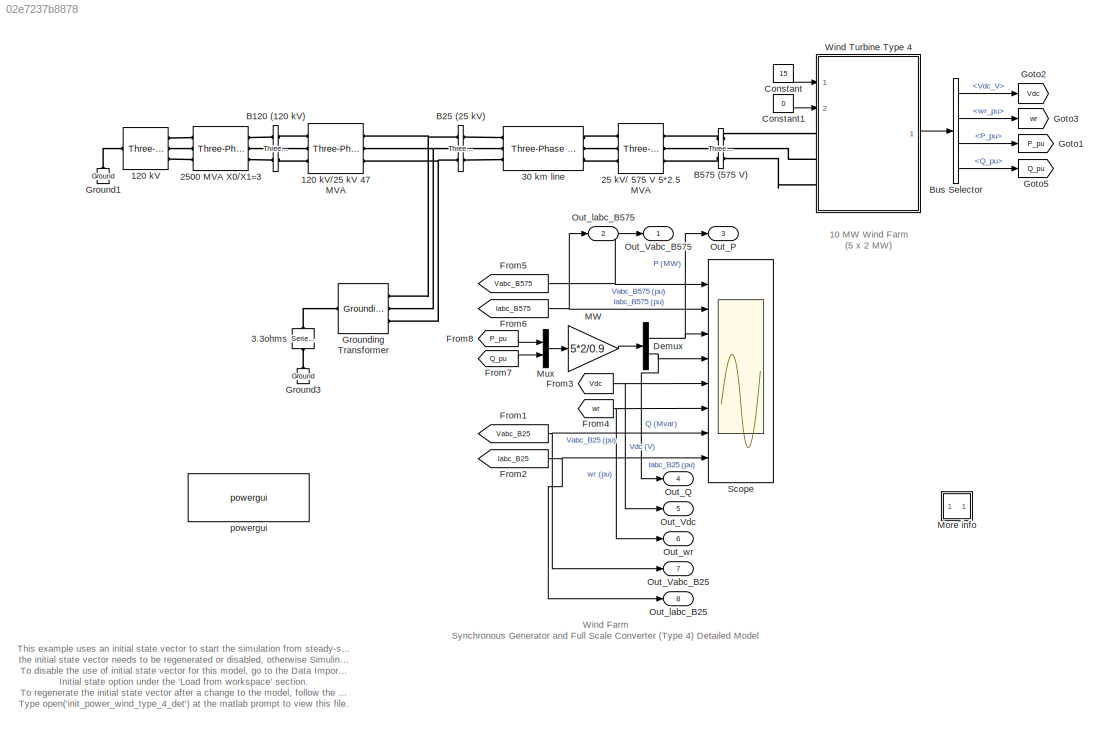
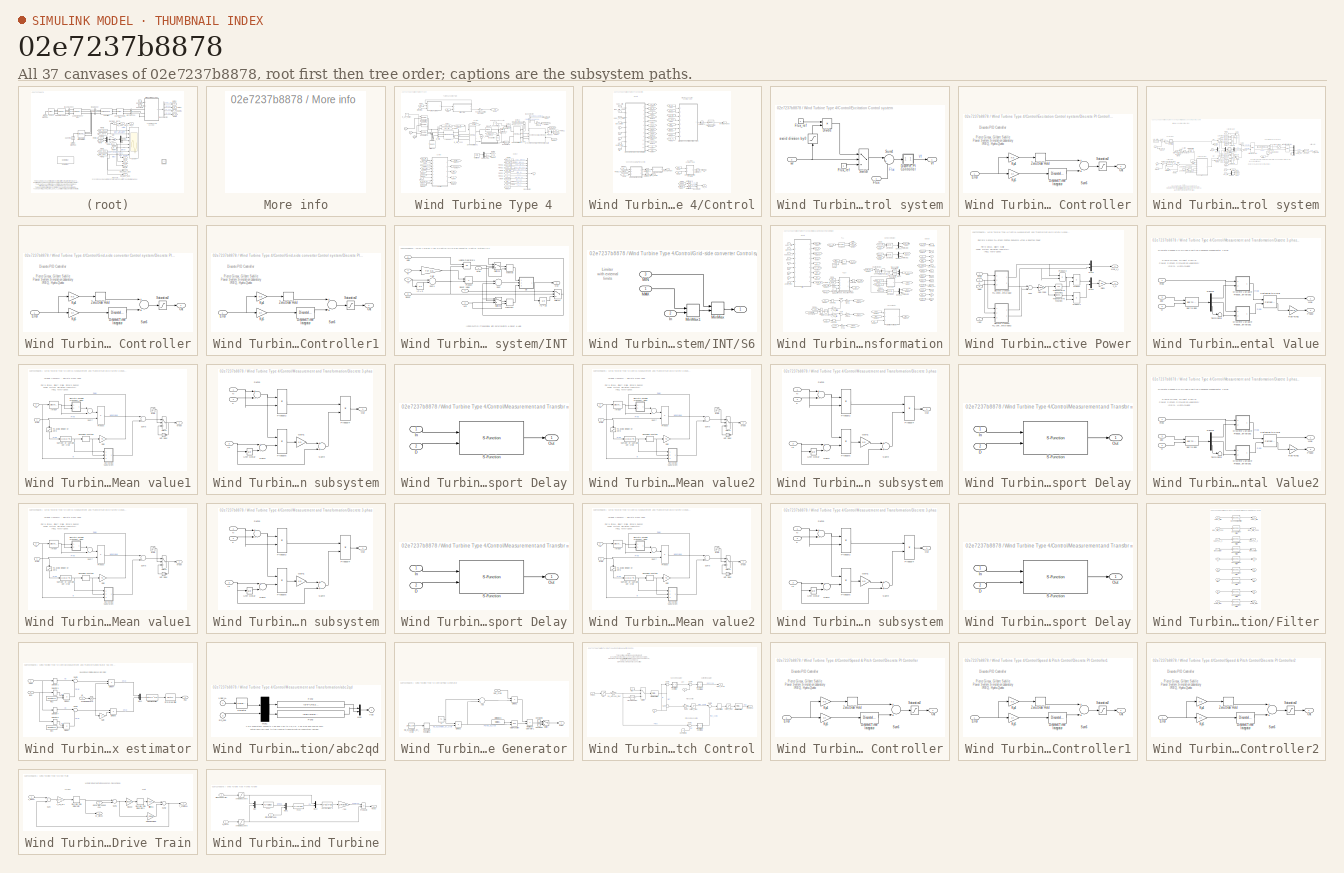
[diagram: thumbnail index - all 37 canvases of the model, root first then tree order]
MODEL slx_02e7237b8878
KIND model
CONFIG InitFcn = xInitial = init_power_wind_type_4_det;\nTs=2e-6;
CONFIG PreLoadFcn = Ts=2e-6;
BLOCK [Reference] 120 kV  REF=powerlib/Electrical
Sources/Three-Phase
Programmable
Voltage Source
  Amplitudes = [1 0.75 1.0]
  BusType = swing
  HarmonicA = [1 -0.1 0 2]
  HarmonicB = [2 0.15 35 2]*0
  HarmonicGeneration = off
  Ports = [0, 0, 0, 0, 0, 1, 3]
  PositiveSequence = [120e3 0 60]
  Pref = 0
  Qmax = inf
  Qmin = -inf
  Qref = 0
  SourceBlock = powerlib/Electrical\nSources/Three-Phase\nProgrammable\nVoltage Source
  SourceType = Three-Phase Programmable Voltage Source
  TimeValues = [0 0.03 0.13]
  Timing = [0.1  2]
  VariationEntity = Amplitude
  VariationFrequency = 2
  VariationMagnitude = 0.3
  VariationPhaseA = off
  VariationRate = 10
  VariationStep = -0.2
  VariationTiming = [0.05 0.05+5/60]
  VariationType = Table of time-amplitude pairs
  VariationTypeAlt = Step
BLOCK [Reference] 120 kV//25 kV 47 MVA  REF=powerlib/Elements/Three-Phase
Transformer
(Two Windings)
  AttributesFormatString = \n
  BreakLoop = off
  DataFile = 'basic_model'
  DataType = off
  Hysteresis = off
  InitialFluxes = [ 0.8 , -0.8 , 0.7 ]
  Lm = 500
  Measurements = None
  MoreParameters = off
  NominalPower = [47e6 60 ]
  Ports = [0, 0, 0, 0, 0, 3, 3]
  Rm = 500
  Saturation = [ 0,0  ;  0.005,1.2  ;  1.0,1.4 ]
  SetInitialFlux = off
  SetSaturation = off
  SourceBlock = powerlib/Elements/Three-Phase\nTransformer\n(Two Windings)
  SourceType = Three-Phase Transformer (Two Windings)
  TransfoNumber = 0
  UNITS = pu
  Winding1 = [ 120e3  0.08/30   0.08 ]
  Winding1Connection = Yg
  Winding2 = [ 25e3  0.08/30  0.08]
  Winding2Connection = Delta (D1)
BLOCK [Reference] 25 kV// 575 V 5*2.5 MVA  REF=powerlib/Elements/Three-Phase
Transformer
(Two Windings)
  AttributesFormatString = \n
  BreakLoop = off
  DataFile = 'hysteresis'
  DataType = off
  Hysteresis = off
  InitialFluxes = [ 0.8 , -0.8 , 0.7 ]
  Lm = inf
  Measurements = None
  MoreParameters = off
  NominalPower = [2.5e6*5  60]
  Ports = [0, 0, 0, 0, 0, 3, 3]
  Rm = 500
  Saturation = [ 0,0 ; 0.0024,1.2 ; 1.0,1.52 ]
  SetInitialFlux = off
  SetSaturation = off
  SourceBlock = powerlib/Elements/Three-Phase\nTransformer\n(Two Windings)
  SourceType = Three-Phase Transformer (Two Windings)
  TransfoNumber = 0
  UNITS = pu
  Winding1 = [25e3 , 0.025/30 , 0.025]
  Winding1Connection = Delta (D11)
  Winding2 = [ 575, 0.025/30 , 0.025]
  Winding2Connection = Yg
BLOCK [Reference] 2500 MVA X0//X1=3  REF=powerlib/Elements/Three-Phase
Mutual Inductance
Z1-Z0
  AttributesFormatString = \n
  LConnTagsString = a|b|c
  Ports = [0, 0, 0, 0, 0, 3, 3]
  PositiveSequence = [0.1  1.0/(2*pi*60)] *120e3^2/2500e6
  RConnTagsString = A|B|C
  SourceBlock = powerlib/Elements/Three-Phase\nMutual Inductance\nZ1-Z0
  SourceType = Three-Phase Mutual Inductance Z1-Z0
  ZeroSequence = [0.3  3.0/(2*pi*60)] *120e3^2/2500e6
BLOCK [Reference] 3.3ohms   REF=powerlib/Elements/Series RLC Branch
  BranchType = R
  Capacitance = []
  Inductance = []
  InitialCurrent = 0
  InitialVoltage = 0
  LConnTagsString = __new0
  Measurements = None
  Ports = [0, 0, 0, 0, 0, 1, 1]
  RConnTagsString = __new0
  Resistance = 3.3
  SetiL0 = off
  Setx0 = off
  SourceBlock = powerlib/Elements/Series RLC Branch
  SourceType = Series RLC Branch
BLOCK [Reference] 30 km line  REF=powerlib/Elements/Three-Phase
PI Section Line
  AttributesFormatString = \n
  Capacitances = [11.33e-009 5.01e-009]
  Frequency = 60
  Inductances = [1.05e-3 3.32e-3]
  LConnTagsString = a|b|c
  Length = 30
  Ports = [0, 0, 0, 0, 0, 3, 3]
  RConnTagsString = A|B|C
  Resistances = [0.1153 0.413]
  SourceBlock = powerlib/Elements/Three-Phase\nPI Section Line
  SourceType = Three-Phase PI Section Line
BLOCK [Reference] B120 (120 kV)  REF=powerlib/Measurements/Three-Phase
V-I Measurement
  CurrentMeasurement = no
  Ipu = off
  LabelI = Iabc_B120
  LabelV = Vabc_B120
  OutputType = Complex
  PSBequivalent = 0
  Pbase = 100e6
  PhasorSimulation = off
  Ports = [0, 0, 0, 0, 0, 3, 3]
  SetLabelI = on
  SetLabelV = off
  SourceBlock = powerlib/Measurements/Three-Phase\nV-I Measurement
  SourceType = Three-Phase VI Measurement
  Vbase = 120e3
  VoltageMeasurement = no
  Vpu = off
  VpuLL = off
BLOCK [Reference] B25 (25 kV)  REF=powerlib/Measurements/Three-Phase
V-I Measurement
  CurrentMeasurement = yes
  Ipu = on
  LabelI = Iabc_B25
  LabelV = Vabc_B25
  OutputType = Complex
  PSBequivalent = 0
  Pbase = 10e6
  PhasorSimulation = off
  Ports = [0, 0, 0, 0, 0, 3, 3]
  SetLabelI = on
  SetLabelV = on
  SourceBlock = powerlib/Measurements/Three-Phase\nV-I Measurement
  SourceType = Three-Phase VI Measurement
  Vbase = 25e3
  VoltageMeasurement = phase-to-ground
  Vpu = on
  VpuLL = off
BLOCK [Reference] B575 (575 V)  REF=powerlib/Measurements/Three-Phase
V-I Measurement
  CurrentMeasurement = yes
  Ipu = on
  LabelI = Iabc_B575
  LabelV = Vabc_B575
  OutputType = Complex
  PSBequivalent = 0
  Pbase = 5*2e6/0.9
  PhasorSimulation = off
  Ports = [0, 0, 0, 0, 0, 3, 3]
  SetLabelI = on
  SetLabelV = on
  SourceBlock = powerlib/Measurements/Three-Phase\nV-I Measurement
  SourceType = Three-Phase VI Measurement
  Vbase = 575
  VoltageMeasurement = phase-to-ground
  Vpu = on
  VpuLL = off
BLOCK [BusSelector] Bus Selector
  OutputSignals = Vdc_V,wr_pu,PQ_pu.P_pu,PQ_pu.Q_pu
  Ports = [1, 4]
BLOCK [Constant] Constant
  Value = 15
BLOCK [Constant] Constant1
  Value = 0
BLOCK [Demux] Demux
  DisplayOption = bar
  Outputs = 2
  Ports = [1, 2]
BLOCK [From] From1
  CloseFcn = tagdialog Close
  GotoTag = Vabc_B25
  TagVisibility = global
BLOCK [From] From2
  CloseFcn = tagdialog Close
  GotoTag = Iabc_B25
  TagVisibility = global
BLOCK [From] From3
  CloseFcn = tagdialog Close
  GotoTag = Vdc
BLOCK [From] From4
  CloseFcn = tagdialog Close
  GotoTag = wr
BLOCK [From] From5
  CloseFcn = tagdialog Close
  GotoTag = Vabc_B575
  TagVisibility = global
BLOCK [From] From6
  CloseFcn = tagdialog Close
  GotoTag = Iabc_B575
  TagVisibility = global
BLOCK [From] From7
  CloseFcn = tagdialog Close
  GotoTag = Q_pu
BLOCK [From] From8
  CloseFcn = tagdialog Close
  GotoTag = P_pu
BLOCK [Goto] Goto1
  GotoTag = P_pu
BLOCK [Goto] Goto2
  GotoTag = Vdc
BLOCK [Goto] Goto3
  GotoTag = wr
BLOCK [Goto] Goto5
  GotoTag = Q_pu
BLOCK [Reference] Ground1  REF=powerlib/Elements/Ground
  AttributesFormatString = \n
  LConnTagsString = a
  Ports = [0, 0, 0, 0, 0, 1]
  SourceBlock = powerlib/Elements/Ground
  SourceType = Ground
BLOCK [Reference] Ground3  REF=powerlib/Elements/Ground
  AttributesFormatString = \n
  LConnTagsString = a
  Ports = [0, 0, 0, 0, 0, 1]
  SourceBlock = powerlib/Elements/Ground
  SourceType = Ground
BLOCK [Reference] Grounding Transformer   REF=powerlib/Elements/Grounding
Transformer 
  MagnetizationBranch_SI = [1041.7 3.927e+005]
  MagnetizationBranch_pu = [500 500]
  Measurements = None
  NominalPower = [100e6   60]
  NominalVoltage = 25e3
  Ports = [0, 0, 0, 0, 0, 3, 1]
  SourceBlock = powerlib/Elements/Grounding\nTransformer
  SourceType = Grounding Transformer
  UNITS = pu
  ZeroSequenceImpedance_SI = [0.052083 589.05]
  ZeroSequenceImpedance_pu = [0.025 0.75]
BLOCK [Gain] MW
  Gain = 5*2/0.9
BLOCK [SubSystem] More info
  OpenFcn = showdemo(bdroot(gcb))
  Ports = []
  RequestExecContextInheritance = off
BLOCK [Mux] Mux
  DisplayOption = bar
  Inputs = 2
  Ports = [2, 1]
BLOCK [Outport] Out_P
  IconDisplay = Port number
  Port = 3
BLOCK [Outport] Out_Q
  IconDisplay = Port number
  Port = 4
BLOCK [Outport] Out_Vabc_B25
  IconDisplay = Port number
  Port = 7
BLOCK [Outport] Out_Vabc_B575
  IconDisplay = Port number
BLOCK [Outport] Out_Vdc
  IconDisplay = Port number
  Port = 5
BLOCK [Outport] Out_labc_B25
  IconDisplay = Port number
  Port = 8
BLOCK [Outport] Out_labc_B575
  IconDisplay = Port number
  Port = 2
BLOCK [Outport] Out_wr
  IconDisplay = Port number
  Port = 6
BLOCK [Scope] Scope
  Floating = off
  LimitDataPoints = off
  NumInputPorts = 8
  Ports = [8]
  ShowLegends = off
  YMax = 2~2~15~1~1500~1.232~2~2
  YMin = -2~-2~5~-1~1000~1.228~-2~-2
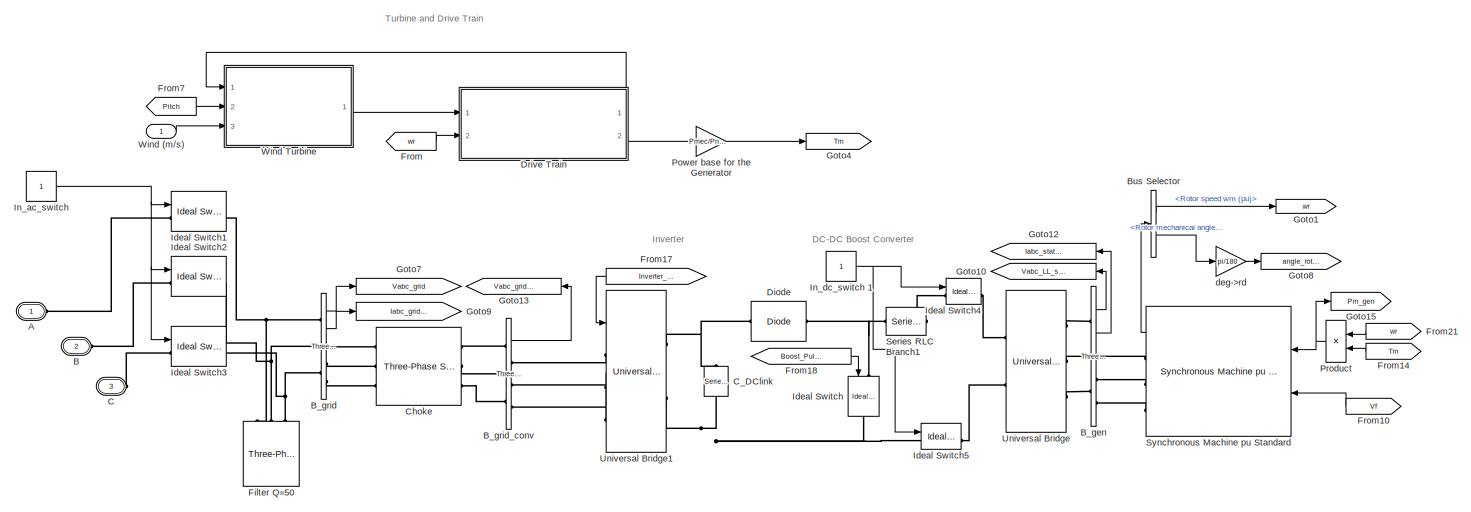
[diagram: Wind Turbine Type 4 - part 1/2, full width, top band]
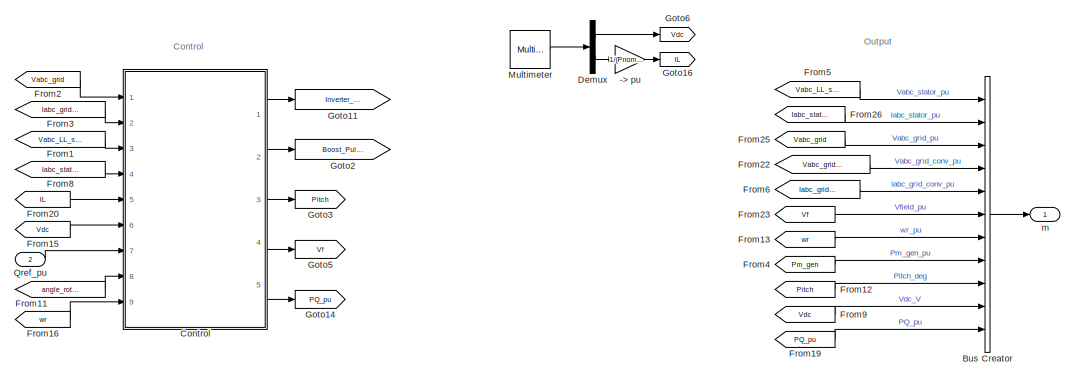
[diagram: Wind Turbine Type 4 - part 2/2, bottom center region]
BLOCK [SubSystem] Wind Turbine Type 4
  LoadFcn = %find_system(gcs,'FollowLinks', 'on', 'LookUnderMasks', 'all');
  Ports = [2, 1, 0, 0, 0, 3]
  RequestExecContextInheritance = off
BLOCK [Gain] Wind Turbine Type 4/-> pu
  Gain = 1/(Pnom/(3*sqrt(2)/pi*Vnom_gen))
BLOCK [PMIOPort] Wind Turbine Type 4/A
  Port = 1
  Side = Left
  Tag = PMCPort
BLOCK [PMIOPort] Wind Turbine Type 4/B
  Port = 2
  Side = Left
  Tag = PMCPort
BLOCK [Reference] Wind Turbine Type 4/B_gen  REF=powerlib/Measurements/Three-Phase
V-I Measurement
  CurrentMeasurement = yes
  Ipu = on
  LabelI = Iabc
  LabelV = Vabc
  OutputType = Complex
  PSBequivalent = 0
  Pbase = Pnom
  PhasorSimulation = off
  Ports = [0, 2, 0, 0, 0, 3, 3]
  SetLabelI = off
  SetLabelV = off
  SourceBlock = powerlib/Measurements/Three-Phase\nV-I Measurement
  SourceType = Three-Phase VI Measurement
  Vbase = Vnom_gen
  VoltageMeasurement = phase-to-phase
  Vpu = on
  VpuLL = off
BLOCK [Reference] Wind Turbine Type 4/B_grid  REF=powerlib/Measurements/Three-Phase
V-I Measurement
  CurrentMeasurement = yes
  Ipu = on
  LabelI = Iabc
  LabelV = Vabc
  OutputType = Complex
  PSBequivalent = 0
  Pbase = Pnom
  PhasorSimulation = off
  Ports = [0, 2, 0, 0, 0, 3, 3]
  SetLabelI = off
  SetLabelV = off
  SourceBlock = powerlib/Measurements/Three-Phase\nV-I Measurement
  SourceType = Three-Phase VI Measurement
  Vbase = Vnom
  VoltageMeasurement = phase-to-ground
  Vpu = on
  VpuLL = off
BLOCK [Reference] Wind Turbine Type 4/B_grid_conv  REF=powerlib/Measurements/Three-Phase
V-I Measurement
  CurrentMeasurement = no
  Ipu = on
  LabelI = Iabc
  LabelV = Vabc
  OutputType = Complex
  PSBequivalent = 0
  Pbase = Pnom
  PhasorSimulation = off
  Ports = [0, 1, 0, 0, 0, 3, 3]
  SetLabelI = off
  SetLabelV = off
  SourceBlock = powerlib/Measurements/Three-Phase\nV-I Measurement
  SourceType = Three-Phase VI Measurement
  Vbase = Vnom
  VoltageMeasurement = phase-to-ground
  Vpu = on
  VpuLL = off
BLOCK [BusCreator] Wind Turbine Type 4/Bus Creator
  DisplayOption = bar
  Inputs = 11
  Ports = [11, 1]
BLOCK [BusSelector] Wind Turbine Type 4/Bus Selector
  OutputSignals = Mechanical.Rotor speed  wm  (pu),Mechanical.Rotor mechanical angle  theta (deg)
  Ports = [1, 2]
BLOCK [PMIOPort] Wind Turbine Type 4/C
  Port = 3
  Side = Left
  Tag = PMCPort
BLOCK [Reference] Wind Turbine Type 4/C_DClink  REF=powerlib/Elements/Series RLC Branch
  BranchType = C
  Capacitance = C_DClink
  Inductance = 1e-3
  InitialCurrent = 0
  InitialVoltage = Vdc_nom
  LConnTagsString = __new0
  Measurements = Branch voltage
  Ports = [0, 0, 0, 0, 0, 1, 1]
  RConnTagsString = __new0
  Resistance = 1
  SetiL0 = off
  Setx0 = on
  SourceBlock = powerlib/Elements/Series RLC Branch
  SourceType = Series RLC Branch
BLOCK [Reference] Wind Turbine Type 4/Choke   REF=powerlib/Elements/Three-Phase
Series RLC Branch
  AttributesFormatString = \n
  BranchType = RL
  Capacitance = []
  Inductance = L_RL*Vnom^2/Pnom/(2*pi*Fnom)
  LConnTagsString = A|B|C
  Measurements = None
  Ports = [0, 0, 0, 0, 0, 3, 3]
  RConnTagsString = A|B|C
  Resistance = R_RL*Vnom^2/Pnom
  SourceBlock = powerlib/Elements/Three-Phase\nSeries RLC Branch
  SourceType = Three-Phase Series RLC Branch
BLOCK [SubSystem] Wind Turbine Type 4/Control
  Ports = [9, 5]
  RequestExecContextInheritance = off
BLOCK [Outport] Wind Turbine Type 4/Control/Boost_Pulse
  IconDisplay = Port number
  Port = 2
BLOCK [BusCreator] Wind Turbine Type 4/Control/Bus Creator
  DisplayOption = bar
  Inputs = 2
  Ports = [2, 1]
BLOCK [SubSystem] Wind Turbine Type 4/Control/Excitation Control system
  Ports = [2, 1]
  RequestExecContextInheritance = off
BLOCK [SubSystem] Wind Turbine Type 4/Control/Excitation Control system/Discrete PI Controller
  DialogController = POWERSYS.PowerSysDialog
  Ports = [1, 1]
  RequestExecContextInheritance = off
BLOCK [DiscreteIntegrator] Wind Turbine Type 4/Control/Excitation Control system/Discrete PI Controller/Discrete-Time Integrator
  InitialCondition = Init
  LimitOutput = on
  LowerSaturationLimit = LowerLimit
  Ports = [1, 1]
  SampleTime = Ts
  UpperSaturationLimit = UpperLimit
BLOCK [Inport] Wind Turbine Type 4/Control/Excitation Control system/Discrete PI Controller/Error
  IconDisplay = Port number
  SampleTime = Ts
BLOCK [Gain] Wind Turbine Type 4/Control/Excitation Control system/Discrete PI Controller/Kp4
  Gain = Kp
  SampleTime = Ts
BLOCK [Gain] Wind Turbine Type 4/Control/Excitation Control system/Discrete PI Controller/Kp5
  Gain = Ki
  SampleTime = Ts
BLOCK [Outport] Wind Turbine Type 4/Control/Excitation Control system/Discrete PI Controller/Out
  IconDisplay = Port number
  InitialOutput = 0
  SampleTime = Ts
BLOCK [Saturate] Wind Turbine Type 4/Control/Excitation Control system/Discrete PI Controller/Saturation2
  InputPortMap = u0
  LowerLimit = LowerLimit
  Ports = [1, 1]
  SampleTime = Ts
  UpperLimit = UpperLimit
BLOCK [Sum] Wind Turbine Type 4/Control/Excitation Control system/Discrete PI Controller/Sum6
  Ports = [2, 1]
  SampleTime = Ts
BLOCK [ZeroOrderHold] Wind Turbine Type 4/Control/Excitation Control system/Discrete PI Controller/Zero-Order Hold
  SampleTime = Ts
BLOCK [Product] Wind Turbine Type 4/Control/Excitation Control system/Divide
  InputSameDT = off
  Inputs = */
  OutDataTypeStr = Inherit: Inherit via internal rule
  Ports = [2, 1]
  RndMeth = Floor
  SaturateOnIntegerOverflow = off
BLOCK [Inport] Wind Turbine Type 4/Control/Excitation Control system/Flux
  IconDisplay = Port number
BLOCK [Constant] Wind Turbine Type 4/Control/Excitation Control system/Flux_ref
BLOCK [Constant] Wind Turbine Type 4/Control/Excitation Control system/Flux_ref 
BLOCK [Sum] Wind Turbine Type 4/Control/Excitation Control system/Sum4
  IconShape = round
  Inputs = |+-
  Ports = [2, 1]
BLOCK [Switch] Wind Turbine Type 4/Control/Excitation Control system/Switch
  InputSameDT = off
  SaturateOnIntegerOverflow = off
  Threshold = 1
BLOCK [Outport] Wind Turbine Type 4/Control/Excitation Control system/Vf
  IconDisplay = Port number
BLOCK [Saturate] Wind Turbine Type 4/Control/Excitation Control system/avoid division by 0
  InputPortMap = u0
  LowerLimit = 1e-6
  Ports = [1, 1]
  UpperLimit = inf
BLOCK [Inport] Wind Turbine Type 4/Control/Excitation Control system/wr
  IconDisplay = Port number
  Port = 2
BLOCK [From] Wind Turbine Type 4/Control/From1
  CloseFcn = tagdialog Close
  GotoTag = Idq_gc
BLOCK [From] Wind Turbine Type 4/Control/From12
  CloseFcn = tagdialog Close
  GotoTag = wr
BLOCK [From] Wind Turbine Type 4/Control/From13
  CloseFcn = tagdialog Close
  GotoTag = Qmeas
BLOCK [From] Wind Turbine Type 4/Control/From18
  CloseFcn = tagdialog Close
  GotoTag = Vdq_grid
BLOCK [From] Wind Turbine Type 4/Control/From2
  CloseFcn = tagdialog Close
  GotoTag = Vdc_meas
BLOCK [From] Wind Turbine Type 4/Control/From22
  CloseFcn = tagdialog Close
  GotoTag = w_pu
BLOCK [From] Wind Turbine Type 4/Control/From23
  CloseFcn = tagdialog Close
  GotoTag = Pmeas
BLOCK [From] Wind Turbine Type 4/Control/From24
  CloseFcn = tagdialog Close
  GotoTag = Vmeas
BLOCK [From] Wind Turbine Type 4/Control/From3
  CloseFcn = tagdialog Close
  GotoTag = Theta_PLL
BLOCK [From] Wind Turbine Type 4/Control/From4
  CloseFcn = tagdialog Close
  GotoTag = Pmeas
BLOCK [From] Wind Turbine Type 4/Control/From5
  CloseFcn = tagdialog Close
  GotoTag = Flux
BLOCK [From] Wind Turbine Type 4/Control/From6
  CloseFcn = tagdialog Close
  GotoTag = wr
BLOCK [From] Wind Turbine Type 4/Control/From7
  CloseFcn = tagdialog Close
  GotoTag = Qmeas
BLOCK [From] Wind Turbine Type 4/Control/From8
  CloseFcn = tagdialog Close
  GotoTag = Qref
BLOCK [From] Wind Turbine Type 4/Control/From9
  CloseFcn = tagdialog Close
  GotoTag = IL
BLOCK [Goto] Wind Turbine Type 4/Control/Goto1
  GotoTag = Theta_PLL
BLOCK [Goto] Wind Turbine Type 4/Control/Goto10
  GotoTag = Idq_gc
BLOCK [Goto] Wind Turbine Type 4/Control/Goto12
  GotoTag = Flux
BLOCK [Goto] Wind Turbine Type 4/Control/Goto13
  GotoTag = w_pu
BLOCK [Goto] Wind Turbine Type 4/Control/Goto14
  GotoTag = Vmeas
BLOCK [Goto] Wind Turbine Type 4/Control/Goto15
  GotoTag = Pmeas
BLOCK [Goto] Wind Turbine Type 4/Control/Goto17
  GotoTag = Qmeas
BLOCK [Goto] Wind Turbine Type 4/Control/Goto2
  GotoTag = Vdc_meas
BLOCK [Goto] Wind Turbine Type 4/Control/Goto3
  GotoTag = IL
BLOCK [Goto] Wind Turbine Type 4/Control/Goto4
  GotoTag = wr
BLOCK [Goto] Wind Turbine Type 4/Control/Goto6
  GotoTag = Qref
BLOCK [Goto] Wind Turbine Type 4/Control/Goto9
  GotoTag = Vdq_grid
BLOCK [SubSystem] Wind Turbine Type 4/Control/Grid-side converter Control system
  Ports = [8, 1]
  RequestExecContextInheritance = off
BLOCK [Gain] Wind Turbine Type 4/Control/Grid-side converter Control system/->pu
  Gain = 1/Vdc_nom
  OutDataTypeStr = Inherit: Inherit via internal rule
  ParamDataTypeStr = Inherit: Inherit via internal rule
  SaturateOnIntegerOverflow = off
BLOCK [Saturate] Wind Turbine Type 4/Control/Grid-side converter Control system/0-Mod_index_max
  InputPortMap = u0
  LowerLimit = 0
  Ports = [1, 1]
  UpperLimit = Mod_index_max
BLOCK [Saturate] Wind Turbine Type 4/Control/Grid-side converter Control system/Avoid division by zero
  InputPortMap = u0
  LowerLimit = 1e-6
  Ports = [1, 1]
  UpperLimit = 1e6
BLOCK [Reference] Wind Turbine Type 4/Control/Grid-side converter Control system/Cartesian to Polar  REF=simulink_extras/Transformations/Cartesian to
Polar
  Ports = [2, 2]
  SourceBlock = simulink_extras/Transformations/Cartesian to\nPolar
  SourceType = Cart2Polar
BLOCK [Constant] Wind Turbine Type 4/Control/Grid-side converter Control system/Constant1
  Value = L_RL
BLOCK [Constant] Wind Turbine Type 4/Control/Grid-side converter Control system/Constant2
  Value = 0
BLOCK [Constant] Wind Turbine Type 4/Control/Grid-side converter Control system/Constant3
  Value = Ki_volt_reg
BLOCK [Constant] Wind Turbine Type 4/Control/Grid-side converter Control system/Constant4
  Value = L_RL
BLOCK [Constant] Wind Turbine Type 4/Control/Grid-side converter Control system/Constant5
  Value = R_RL
BLOCK [Constant] Wind Turbine Type 4/Control/Grid-side converter Control system/Constant6
  Value = R_RL
BLOCK [DataTypeConversion] Wind Turbine Type 4/Control/Grid-side converter Control system/Data Type Conversion2
  OutDataTypeStr = boolean
  RndMeth = Floor
  SaturateOnIntegerOverflow = off
BLOCK [Demux] Wind Turbine Type 4/Control/Grid-side converter Control system/Demux
  Outputs = 2
  Ports = [1, 2]
BLOCK [Demux] Wind Turbine Type 4/Control/Grid-side converter Control system/Demux3
  Outputs = 2
  Ports = [1, 2]
BLOCK [Demux] Wind Turbine Type 4/Control/Grid-side converter Control system/Demux4
  Outputs = 2
  Ports = [1, 2]
BLOCK [SubSystem] Wind Turbine Type 4/Control/Grid-side converter Control system/Discrete PI Controller
  DialogController = POWERSYS.PowerSysDialog
  Ports = [1, 1]
  RequestExecContextInheritance = off
BLOCK [DiscreteIntegrator] Wind Turbine Type 4/Control/Grid-side converter Control system/Discrete PI Controller/Discrete-Time Integrator
  InitialCondition = Init
  LimitOutput = on
  LowerSaturationLimit = LowerLimit
  Ports = [1, 1]
  SampleTime = Ts
  UpperSaturationLimit = UpperLimit
BLOCK [Inport] Wind Turbine Type 4/Control/Grid-side converter Control system/Discrete PI Controller/Error
  IconDisplay = Port number
  SampleTime = Ts
BLOCK [Gain] Wind Turbine Type 4/Control/Grid-side converter Control system/Discrete PI Controller/Kp4
  Gain = Kp
  SampleTime = Ts
BLOCK [Gain] Wind Turbine Type 4/Control/Grid-side converter Control system/Discrete PI Controller/Kp5
  Gain = Ki
  SampleTime = Ts
BLOCK [Outport] Wind Turbine Type 4/Control/Grid-side converter Control system/Discrete PI Controller/Out
  IconDisplay = Port number
  InitialOutput = 0
  SampleTime = Ts
BLOCK [Saturate] Wind Turbine Type 4/Control/Grid-side converter Control system/Discrete PI Controller/Saturation2
  InputPortMap = u0
  LowerLimit = LowerLimit
  Ports = [1, 1]
  SampleTime = Ts
  UpperLimit = UpperLimit
BLOCK [Sum] Wind Turbine Type 4/Control/Grid-side converter Control system/Discrete PI Controller/Sum6
  Ports = [2, 1]
  SampleTime = Ts
BLOCK [ZeroOrderHold] Wind Turbine Type 4/Control/Grid-side converter Control system/Discrete PI Controller/Zero-Order Hold
  SampleTime = Ts
BLOCK [SubSystem] Wind Turbine Type 4/Control/Grid-side converter Control system/Discrete PI Controller1
  DialogController = POWERSYS.PowerSysDialog
  Ports = [1, 1]
  RequestExecContextInheritance = off
BLOCK [DiscreteIntegrator] Wind Turbine Type 4/Control/Grid-side converter Control system/Discrete PI Controller1/Discrete-Time Integrator
  InitialCondition = Init
  LimitOutput = on
  LowerSaturationLimit = LowerLimit
  Ports = [1, 1]
  SampleTime = Ts
  UpperSaturationLimit = UpperLimit
BLOCK [Inport] Wind Turbine Type 4/Control/Grid-side converter Control system/Discrete PI Controller1/Error
  IconDisplay = Port number
  SampleTime = Ts
BLOCK [Gain] Wind Turbine Type 4/Control/Grid-side converter Control system/Discrete PI Controller1/Kp4
  Gain = Kp
  SampleTime = Ts
BLOCK [Gain] Wind Turbine Type 4/Control/Grid-side converter Control system/Discrete PI Controller1/Kp5
  Gain = Ki
  SampleTime = Ts
BLOCK [Outport] Wind Turbine Type 4/Control/Grid-side converter Control system/Discrete PI Controller1/Out
  IconDisplay = Port number
  InitialOutput = 0
  SampleTime = Ts
BLOCK [Saturate] Wind Turbine Type 4/Control/Grid-side converter Control system/Discrete PI Controller1/Saturation2
  InputPortMap = u0
  LowerLimit = LowerLimit
  Ports = [1, 1]
  SampleTime = Ts
  UpperLimit = UpperLimit
BLOCK [Sum] Wind Turbine Type 4/Control/Grid-side converter Control system/Discrete PI Controller1/Sum6
  Ports = [2, 1]
  SampleTime = Ts
BLOCK [ZeroOrderHold] Wind Turbine Type 4/Control/Grid-side converter Control system/Discrete PI Controller1/Zero-Order Hold
  SampleTime = Ts
BLOCK [DiscreteIntegrator] Wind Turbine Type 4/Control/Grid-side converter Control system/Discrete-Time Integrator1
  InitialCondition = 1
  InitialConditionSource = external
  LimitOutput = on
  LowerSaturationLimit = Var_reg_output_low_limit
  Ports = [2, 1]
  SampleTime = Ts
  UpperSaturationLimit = Var_reg_output_hi_limit
  gainval = Ki_var_reg
BLOCK [Reference] Wind Turbine Type 4/Control/Grid-side converter Control system/First-Order Filter  REF=powerlib_meascontrol/Filters/First-Order
Filter
  FilterType = Lowpass
  FreqRange = [0,  200,  1]
  Initialize = on
  PlotResponse = off
  Ports = [1, 1]
  SourceBlock = powerlib_meascontrol/Filters/First-Order\nFilter
  SourceType = First-Order Filter
  Tc = Iq_ref_limit_time_constant
  Ts = Ts
  Vac_Init = [0, 0, 0]
  Vdc_Init = Imax_grid_conv
BLOCK [From] Wind Turbine Type 4/Control/Grid-side converter Control system/From1
  CloseFcn = tagdialog Close
  GotoTag = w_pu
BLOCK [From] Wind Turbine Type 4/Control/Grid-side converter Control system/From10
  CloseFcn = tagdialog Close
  GotoTag = id_ref
BLOCK [From] Wind Turbine Type 4/Control/Grid-side converter Control system/From2
  CloseFcn = tagdialog Close
  GotoTag = iq_ref
BLOCK [From] Wind Turbine Type 4/Control/Grid-side converter Control system/From3
  CloseFcn = tagdialog Close
  GotoTag = iq_ref
BLOCK [From] Wind Turbine Type 4/Control/Grid-side converter Control system/From4
  CloseFcn = tagdialog Close
  GotoTag = w_pu
BLOCK [From] Wind Turbine Type 4/Control/Grid-side converter Control system/From5
  CloseFcn = tagdialog Close
  GotoTag = id_ref
BLOCK [From] Wind Turbine Type 4/Control/Grid-side converter Control system/From6
  CloseFcn = tagdialog Close
  GotoTag = Vd
BLOCK [From] Wind Turbine Type 4/Control/Grid-side converter Control system/From7
  CloseFcn = tagdialog Close
  GotoTag = Vq
BLOCK [From] Wind Turbine Type 4/Control/Grid-side converter Control system/From8
  CloseFcn = tagdialog Close
  GotoTag = Vdc
BLOCK [Gain] Wind Turbine Type 4/Control/Grid-side converter Control system/Gain
  Gain = -1
BLOCK [Goto] Wind Turbine Type 4/Control/Grid-side converter Control system/Goto1
  GotoTag = w_pu
BLOCK [Goto] Wind Turbine Type 4/Control/Grid-side converter Control system/Goto13
  GotoTag = Vdc
BLOCK [Goto] Wind Turbine Type 4/Control/Grid-side converter Control system/Goto2
  GotoTag = iq_ref
BLOCK [Goto] Wind Turbine Type 4/Control/Grid-side converter Control system/Goto3
  GotoTag = id_ref
BLOCK [Goto] Wind Turbine Type 4/Control/Grid-side converter Control system/Goto4
  GotoTag = Vd
BLOCK [Goto] Wind Turbine Type 4/Control/Grid-side converter Control system/Goto5
  GotoTag = Vq
BLOCK [SubSystem] Wind Turbine Type 4/Control/Grid-side converter Control system/INT
  Ports = [7, 1]
  RequestExecContextInheritance = off
BLOCK [Gain] Wind Turbine Type 4/Control/Grid-side converter Control system/INT/Gain
  Gain = Ts* 0.5
BLOCK [Inport] Wind Turbine Type 4/Control/Grid-side converter Control system/INT/Hold
  IconDisplay = Port number
  Port = 5
BLOCK [UnitDelay] Wind Turbine Type 4/Control/Grid-side converter Control system/INT/IC = 0
  SampleTime = Ts
BLOCK [UnitDelay] Wind Turbine Type 4/Control/Grid-side converter Control system/INT/IC = i_ic
  SampleTime = Ts
BLOCK [Inport] Wind Turbine Type 4/Control/Grid-side converter Control system/INT/In
  IconDisplay = Port number
  Port = 3
BLOCK [Inport] Wind Turbine Type 4/Control/Grid-side converter Control system/INT/Ki
  IconDisplay = Port number
  Port = 4
BLOCK [Logic] Wind Turbine Type 4/Control/Grid-side converter Control system/INT/Logical Operator4
  Operator = OR
  Ports = [2, 1]
BLOCK [Inport] Wind Turbine Type 4/Control/Grid-side converter Control system/INT/Max
  IconDisplay = Port number
BLOCK [Inport] Wind Turbine Type 4/Control/Grid-side converter Control system/INT/Min
  IconDisplay = Port number
  Port = 2
BLOCK [MinMax] Wind Turbine Type 4/Control/Grid-side converter Control system/INT/MinMax
  Inputs = 2
  Ports = [2, 1]
BLOCK [MinMax] Wind Turbine Type 4/Control/Grid-side converter Control system/INT/MinMax1
  Function = max
  Inputs = 2
  Ports = [2, 1]
BLOCK [Outport] Wind Turbine Type 4/Control/Grid-side converter Control system/INT/Out
  IconDisplay = Port number
  InitialOutput = 0
BLOCK [Product] Wind Turbine Type 4/Control/Grid-side converter Control system/INT/Product
  InputSameDT = off
  Ports = [2, 1]
  RndMeth = Floor
BLOCK [Inport] Wind Turbine Type 4/Control/Grid-side converter Control system/INT/Reset
  IconDisplay = Port number
  Port = 6
BLOCK [Inport] Wind Turbine Type 4/Control/Grid-side converter Control system/INT/Reset Value
  IconDisplay = Port number
  Port = 7
BLOCK [SubSystem] Wind Turbine Type 4/Control/Grid-side converter Control system/INT/S6
  Ports = [3, 1]
  RequestExecContextInheritance = off
BLOCK [Outport] Wind Turbine Type 4/Control/Grid-side converter Control system/INT/S6/  
  IconDisplay = Port number
  InitialOutput = 0
BLOCK [Inport] Wind Turbine Type 4/Control/Grid-side converter Control system/INT/S6/In
  IconDisplay = Port number
  Port = 2
BLOCK [Inport] Wind Turbine Type 4/Control/Grid-side converter Control system/INT/S6/MAX
  IconDisplay = Port number
BLOCK [Inport] Wind Turbine Type 4/Control/Grid-side converter Control system/INT/S6/MIN
  IconDisplay = Port number
  Port = 3
BLOCK [MinMax] Wind Turbine Type 4/Control/Grid-side converter Control system/INT/S6/MinMax
  Function = max
  Inputs = 2
  Ports = [2, 1]
BLOCK [MinMax] Wind Turbine Type 4/Control/Grid-side converter Control system/INT/S6/MinMax1
  Inputs = 2
  Ports = [2, 1]
BLOCK [Sum] Wind Turbine Type 4/Control/Grid-side converter Control system/INT/Sum
  Ports = [2, 1]
BLOCK [Sum] Wind Turbine Type 4/Control/Grid-side converter Control system/INT/Sum1
  Ports = [2, 1]
BLOCK [Switch] Wind Turbine Type 4/Control/Grid-side converter Control system/INT/Switch2
  Threshold = 0.5
BLOCK [Switch] Wind Turbine Type 4/Control/Grid-side converter Control system/INT/Switch3
  Threshold = 0.5
BLOCK [Switch] Wind Turbine Type 4/Control/Grid-side converter Control system/INT/Switch7
  Threshold = 0.5
BLOCK [Inport] Wind Turbine Type 4/Control/Grid-side converter Control system/Idq_gc
  IconDisplay = Port number
BLOCK [Constant] Wind Turbine Type 4/Control/Grid-side converter Control system/Imax^2
  Value = Imax_grid_conv^2
BLOCK [Constant] Wind Turbine Type 4/Control/Grid-side converter Control system/K
  Value = Vnom*2*sqrt(2/3)
BLOCK [Math] Wind Turbine Type 4/Control/Grid-side converter Control system/Math Function
  Operator = square
  Ports = [1, 1]
BLOCK [Math] Wind Turbine Type 4/Control/Grid-side converter Control system/Math Function1
  Operator = sqrt
  Ports = [1, 1]
BLOCK [Mux] Wind Turbine Type 4/Control/Grid-side converter Control system/Mux
  DisplayOption = bar
  Inputs = 3
  Ports = [3, 1]
BLOCK [Mux] Wind Turbine Type 4/Control/Grid-side converter Control system/Mux2
  DisplayOption = bar
  Inputs = 2
  Ports = [2, 1]
BLOCK [Reference] Wind Turbine Type 4/Control/Grid-side converter Control system/Polar to Cartesian  REF=simulink_extras/Transformations/Polar to
Cartesian
  Ports = [2, 2]
  SourceBlock = simulink_extras/Transformations/Polar to\nCartesian
  SourceType = Polar2Cart
BLOCK [Product] Wind Turbine Type 4/Control/Grid-side converter Control system/Product
  Inputs = 3
  Ports = [3, 1]
  RndMeth = Floor
BLOCK [Product] Wind Turbine Type 4/Control/Grid-side converter Control system/Product1
  Inputs = 3
  Ports = [3, 1]
  RndMeth = Floor
BLOCK [Product] Wind Turbine Type 4/Control/Grid-side converter Control system/Product2
  Ports = [2, 1]
  RndMeth = Floor
BLOCK [Product] Wind Turbine Type 4/Control/Grid-side converter Control system/Product3
  Ports = [2, 1]
  RndMeth = Floor
BLOCK [Product] Wind Turbine Type 4/Control/Grid-side converter Control system/Product4
  Inputs = **/
  Ports = [3, 1]
  RndMeth = Floor
BLOCK [Inport] Wind Turbine Type 4/Control/Grid-side converter Control system/Qmeas
  IconDisplay = Port number
  Port = 6
BLOCK [Inport] Wind Turbine Type 4/Control/Grid-side converter Control system/Qref
  IconDisplay = Port number
  Port = 5
BLOCK [Sum] Wind Turbine Type 4/Control/Grid-side converter Control system/Sum
  IconShape = round
  Inputs = |+-
  Ports = [2, 1]
BLOCK [Sum] Wind Turbine Type 4/Control/Grid-side converter Control system/Sum1
  IconShape = round
  Inputs = |-+
  Ports = [2, 1]
BLOCK [Sum] Wind Turbine Type 4/Control/Grid-side converter Control system/Sum2
  IconShape = round
  Inputs = |+-
  Ports = [2, 1]
BLOCK [Sum] Wind Turbine Type 4/Control/Grid-side converter Control system/Sum3
  IconShape = round
  Inputs = |+-
  Ports = [2, 1]
BLOCK [Sum] Wind Turbine Type 4/Control/Grid-side converter Control system/Sum4
  IconShape = round
  Inputs = -+|
  Ports = [2, 1]
BLOCK [Sum] Wind Turbine Type 4/Control/Grid-side converter Control system/Sum5
  IconShape = round
  Inputs = ||++-
  Ports = [3, 1]
BLOCK [Sum] Wind Turbine Type 4/Control/Grid-side converter Control system/Sum6
  IconShape = round
  Inputs = |+-
  Ports = [2, 1]
BLOCK [Sum] Wind Turbine Type 4/Control/Grid-side converter Control system/Sum7
  IconShape = round
  Inputs = |+-
  Ports = [2, 1]
BLOCK [Sum] Wind Turbine Type 4/Control/Grid-side converter Control system/Sum8
  IconShape = round
  Inputs = |--+
  Ports = [3, 1]
BLOCK [Sum] Wind Turbine Type 4/Control/Grid-side converter Control system/Sum9
  IconShape = round
  Inputs = |-+
  Ports = [2, 1]
BLOCK [Inport] Wind Turbine Type 4/Control/Grid-side converter Control system/Theta_PLL
  IconDisplay = Port number
  Port = 8
BLOCK [Outport] Wind Turbine Type 4/Control/Grid-side converter Control system/Uctrl_inverter
  IconDisplay = Port number
BLOCK [UnitDelay] Wind Turbine Type 4/Control/Grid-side converter Control system/Unit Delay1
  InitialCondition = 1
  SampleTime = Ts
BLOCK [Constant] Wind Turbine Type 4/Control/Grid-side converter Control system/V0
  Value = 0
BLOCK [Inport] Wind Turbine Type 4/Control/Grid-side converter Control system/Vdc
  IconDisplay = Port number
  Port = 4
BLOCK [Constant] Wind Turbine Type 4/Control/Grid-side converter Control system/Vdc_ref (V)
  Value = Vdc_nom
BLOCK [Inport] Wind Turbine Type 4/Control/Grid-side converter Control system/Vdq_grid
  IconDisplay = Port number
  Port = 3
BLOCK [Inport] Wind Turbine Type 4/Control/Grid-side converter Control system/Vmeas
  IconDisplay = Port number
  Port = 7
BLOCK [Reference] Wind Turbine Type 4/Control/Grid-side converter Control system/dq0 to abc  REF=powerlib_meascontrol/Transformations/dq0 to abc
  Alignment = 90 degrees behind phase A axis
  Ports = [2, 1]
  SourceBlock = powerlib_meascontrol/Transformations/dq0 to abc
  SourceType = dq0 to abc Transformation
BLOCK [Inport] Wind Turbine Type 4/Control/Grid-side converter Control system/w_pu
  IconDisplay = Port number
  Port = 2
BLOCK [Inport] Wind Turbine Type 4/Control/IL
  IconDisplay = Port number
  Port = 5
BLOCK [Inport] Wind Turbine Type 4/Control/Iabc_grid_conv
  IconDisplay = Port number
  Port = 2
BLOCK [Inport] Wind Turbine Type 4/Control/Iabc_stator
  IconDisplay = Port number
  Port = 4
BLOCK [Outport] Wind Turbine Type 4/Control/Inverter_Pulses
  IconDisplay = Port number
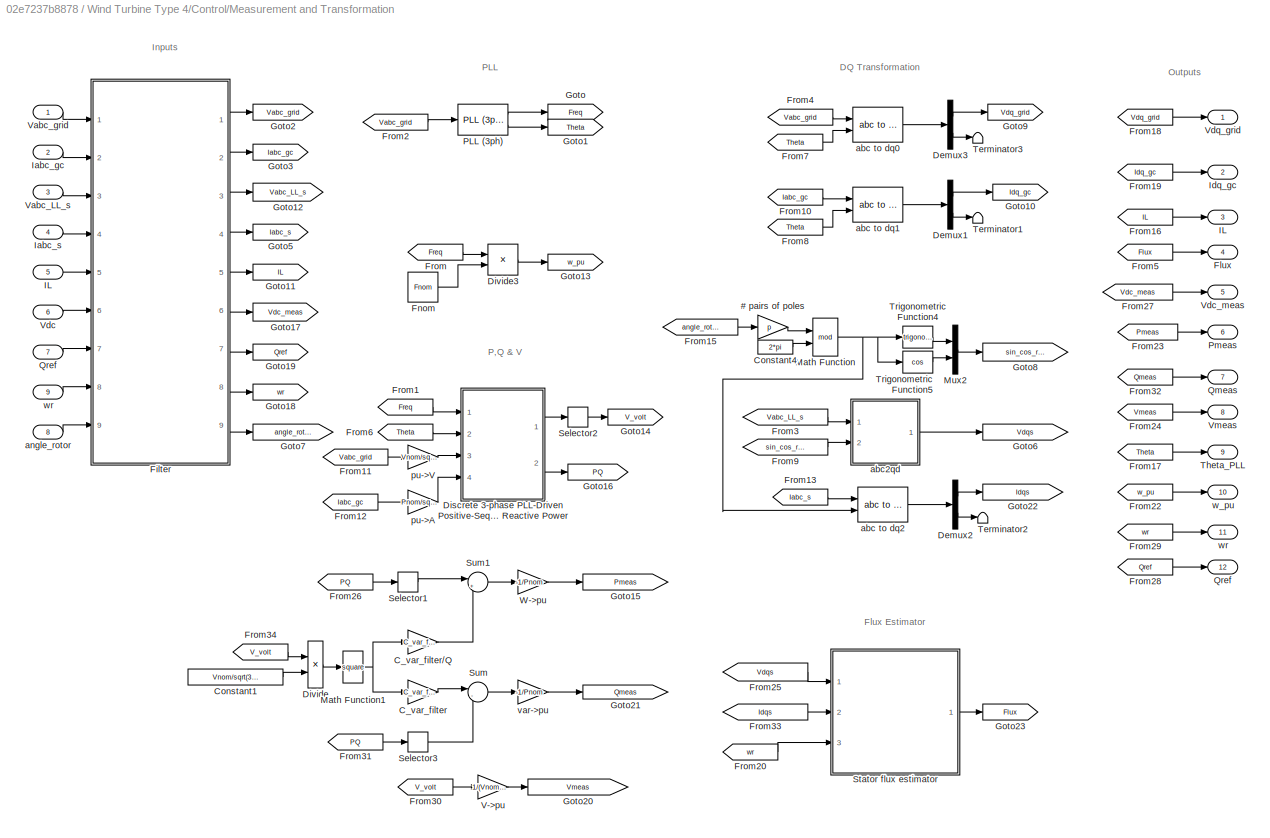
BLOCK [SubSystem] Wind Turbine Type 4/Control/Measurement and Transformation
  Ports = [9, 12]
  RequestExecContextInheritance = off
BLOCK [Gain] Wind Turbine Type 4/Control/Measurement and Transformation/# pairs of poles
  Gain = p
BLOCK [Gain] Wind Turbine Type 4/Control/Measurement and Transformation/C_var_filter
  Gain = C_var_filter
BLOCK [Gain] Wind Turbine Type 4/Control/Measurement and Transformation/C_var_filter//Q
  Gain = C_var_filter/Q_filter
BLOCK [Constant] Wind Turbine Type 4/Control/Measurement and Transformation/Constant1
  Value = Vnom/sqrt(3)*sqrt(2)
BLOCK [Constant] Wind Turbine Type 4/Control/Measurement and Transformation/Constant4
  Value = 2*pi
BLOCK [Demux] Wind Turbine Type 4/Control/Measurement and Transformation/Demux1
  Outputs = [2 1]
  Ports = [1, 2]
BLOCK [Demux] Wind Turbine Type 4/Control/Measurement and Transformation/Demux2
  Outputs = [2 1]
  Ports = [1, 2]
BLOCK [Demux] Wind Turbine Type 4/Control/Measurement and Transformation/Demux3
  Outputs = [2 1]
  Ports = [1, 2]
BLOCK [SubSystem] Wind Turbine Type 4/Control/Measurement and Transformation/Discrete 3-phase PLL-Driven Positive-Sequence Active & Reactive Power
  OpenFcn = power_openblockproxy();
  Ports = [4, 2]
  RequestExecContextInheritance = off
BLOCK [Gain] Wind Turbine Type 4/Control/Measurement and Transformation/Discrete 3-phase PLL-Driven Positive-Sequence Active & Reactive Power/Deg->Rad
  Gain = pi/180
BLOCK [SubSystem] Wind Turbine Type 4/Control/Measurement and Transformation/Discrete 3-phase PLL-Driven Positive-Sequence Active & Reactive Power/Discrete 3-phase PLL-Driven Positive-Sequence Fundamental Value
  OpenFcn = power_openblockproxy();
  Ports = [3, 2]
  RequestExecContextInheritance = off
BLOCK [Reference] Wind Turbine Type 4/Control/Measurement and Transformation/Discrete 3-phase PLL-Driven Positive-Sequence Active & Reactive Power/Discrete 3-phase PLL-Driven Positive-Sequence Fundamental Value/Cartesian to Polar  REF=simulink_extras/Transformations/Cartesian to
Polar
  Ports = [2, 2]
  SourceBlock = simulink_extras/Transformations/Cartesian to\nPolar
  SourceType = Cart2Polar
BLOCK [Demux] Wind Turbine Type 4/Control/Measurement and Transformation/Discrete 3-phase PLL-Driven Positive-Sequence Active & Reactive Power/Discrete 3-phase PLL-Driven Positive-Sequence Fundamental Value/Demux
  Outputs = 3
  Ports = [1, 3]
BLOCK [SubSystem] Wind Turbine Type 4/Control/Measurement and Transformation/Discrete 3-phase PLL-Driven Positive-Sequence Active & Reactive Power/Discrete 3-phase PLL-Driven Positive-Sequence Fundamental Value/Discrete Variable Frequency Mean value1
  OpenFcn = power_openblockproxy();
  Ports = [2, 1]
  RequestExecContextInheritance = off
BLOCK [SubSystem] Wind Turbine Type 4/Control/Measurement and Transformation/Discrete 3-phase PLL-Driven Positive-Sequence Active & Reactive Power/Discrete 3-phase PLL-Driven Positive-Sequence Fundamental Value/Discrete Variable Frequency Mean value1/Correction subsystem
  Ports = [3, 1]
  RequestExecContextInheritance = off
BLOCK [Inport] Wind Turbine Type 4/Control/Measurement and Transformation/Discrete 3-phase PLL-Driven Positive-Sequence Active & Reactive Power/Discrete 3-phase PLL-Driven Positive-Sequence Fundamental Value/Discrete Variable Frequency Mean value1/Correction subsystem/F
  IconDisplay = Port number
  Port = 2
BLOCK [Gain] Wind Turbine Type 4/Control/Measurement and Transformation/Discrete 3-phase PLL-Driven Positive-Sequence Active & Reactive Power/Discrete 3-phase PLL-Driven Positive-Sequence Fundamental Value/Discrete Variable Frequency Mean value1/Correction subsystem/Gain1
  Gain = 0.5
BLOCK [Inport] Wind Turbine Type 4/Control/Measurement and Transformation/Discrete 3-phase PLL-Driven Positive-Sequence Active & Reactive Power/Discrete 3-phase PLL-Driven Positive-Sequence Fundamental Value/Discrete Variable Frequency Mean value1/Correction subsystem/In
  IconDisplay = Port number
  Port = 3
BLOCK [Inport] Wind Turbine Type 4/Control/Measurement and Transformation/Discrete 3-phase PLL-Driven Positive-Sequence Active & Reactive Power/Discrete 3-phase PLL-Driven Positive-Sequence Fundamental Value/Discrete Variable Frequency Mean value1/Correction subsystem/N
  IconDisplay = Port number
BLOCK [Outport] Wind Turbine Type 4/Control/Measurement and Transformation/Discrete 3-phase PLL-Driven Positive-Sequence Active & Reactive Power/Discrete 3-phase PLL-Driven Positive-Sequence Fundamental Value/Discrete Variable Frequency Mean value1/Correction subsystem/Out
  IconDisplay = Port number
BLOCK [Product] Wind Turbine Type 4/Control/Measurement and Transformation/Discrete 3-phase PLL-Driven Positive-Sequence Active & Reactive Power/Discrete 3-phase PLL-Driven Positive-Sequence Fundamental Value/Discrete Variable Frequency Mean value1/Correction subsystem/Product2
  Inputs = */
  Ports = [2, 1]
  RndMeth = Floor
BLOCK [Product] Wind Turbine Type 4/Control/Measurement and Transformation/Discrete 3-phase PLL-Driven Positive-Sequence Active & Reactive Power/Discrete 3-phase PLL-Driven Positive-Sequence Fundamental Value/Discrete Variable Frequency Mean value1/Correction subsystem/Product4
  Inputs = **
  Ports = [2, 1]
  RndMeth = Floor
BLOCK [Product] Wind Turbine Type 4/Control/Measurement and Transformation/Discrete 3-phase PLL-Driven Positive-Sequence Active & Reactive Power/Discrete 3-phase PLL-Driven Positive-Sequence Fundamental Value/Discrete Variable Frequency Mean value1/Correction subsystem/Product5
  Inputs = **
  Ports = [2, 1]
  RndMeth = Floor
BLOCK [Sum] Wind Turbine Type 4/Control/Measurement and Transformation/Discrete 3-phase PLL-Driven Positive-Sequence Active & Reactive Power/Discrete 3-phase PLL-Driven Positive-Sequence Fundamental Value/Discrete Variable Frequency Mean value1/Correction subsystem/Sum1
  Inputs = +-
  Ports = [2, 1]
BLOCK [Sum] Wind Turbine Type 4/Control/Measurement and Transformation/Discrete 3-phase PLL-Driven Positive-Sequence Active & Reactive Power/Discrete 3-phase PLL-Driven Positive-Sequence Fundamental Value/Discrete Variable Frequency Mean value1/Correction subsystem/Sum4
  Ports = [2, 1]
BLOCK [Sum] Wind Turbine Type 4/Control/Measurement and Transformation/Discrete 3-phase PLL-Driven Positive-Sequence Active & Reactive Power/Discrete 3-phase PLL-Driven Positive-Sequence Fundamental Value/Discrete Variable Frequency Mean value1/Correction subsystem/Sum5
  Inputs = +-
  Ports = [2, 1]
BLOCK [UnitDelay] Wind Turbine Type 4/Control/Measurement and Transformation/Discrete 3-phase PLL-Driven Positive-Sequence Active & Reactive Power/Discrete 3-phase PLL-Driven Positive-Sequence Fundamental Value/Discrete Variable Frequency Mean value1/Correction subsystem/Unit Delay
  SampleTime = Ts
BLOCK [SubSystem] Wind Turbine Type 4/Control/Measurement and Transformation/Discrete 3-phase PLL-Driven Positive-Sequence Active & Reactive Power/Discrete 3-phase PLL-Driven Positive-Sequence Fundamental Value/Discrete Variable Frequency Mean value1/Discrete Variable Transport Delay
  Ports = [2, 1]
  RequestExecContextInheritance = off
BLOCK [Inport] Wind Turbine Type 4/Control/Measurement and Transformation/Discrete 3-phase PLL-Driven Positive-Sequence Active & Reactive Power/Discrete 3-phase PLL-Driven Positive-Sequence Fundamental Value/Discrete Variable Frequency Mean value1/Discrete Variable Transport Delay/D
  IconDisplay = Port number
  Port = 2
BLOCK [Inport] Wind Turbine Type 4/Control/Measurement and Transformation/Discrete 3-phase PLL-Driven Positive-Sequence Active & Reactive Power/Discrete 3-phase PLL-Driven Positive-Sequence Fundamental Value/Discrete Variable Frequency Mean value1/Discrete Variable Transport Delay/In
  IconDisplay = Port number
BLOCK [Outport] Wind Turbine Type 4/Control/Measurement and Transformation/Discrete 3-phase PLL-Driven Positive-Sequence Active & Reactive Power/Discrete 3-phase PLL-Driven Positive-Sequence Fundamental Value/Discrete Variable Frequency Mean value1/Discrete Variable Transport Delay/Out
  IconDisplay = Port number
BLOCK [S-Function] Wind Turbine Type 4/Control/Measurement and Transformation/Discrete 3-phase PLL-Driven Positive-Sequence Active & Reactive Power/Discrete 3-phase PLL-Driven Positive-Sequence Fundamental Value/Discrete Variable Frequency Mean value1/Discrete Variable Transport Delay/S-Function 
  EnableBusSupport = off
  FunctionName = discreteVariableTransportDelay
  Parameters = MaxDelay,Ts,InitialValue
  Ports = [2, 1]
BLOCK [Inport] Wind Turbine Type 4/Control/Measurement and Transformation/Discrete 3-phase PLL-Driven Positive-Sequence Active & Reactive Power/Discrete 3-phase PLL-Driven Positive-Sequence Fundamental Value/Discrete Variable Frequency Mean value1/Freq
  IconDisplay = Port number
  PortDimensions = 1
BLOCK [Gain] Wind Turbine Type 4/Control/Measurement and Transformation/Discrete 3-phase PLL-Driven Positive-Sequence Active & Reactive Power/Discrete 3-phase PLL-Driven Positive-Sequence Fundamental Value/Discrete Variable Frequency Mean value1/Gain
  Gain = Ts
BLOCK [Inport] Wind Turbine Type 4/Control/Measurement and Transformation/Discrete 3-phase PLL-Driven Positive-Sequence Active & Reactive Power/Discrete 3-phase PLL-Driven Positive-Sequence Fundamental Value/Discrete Variable Frequency Mean value1/In
  IconDisplay = Port number
  Port = 2
  PortDimensions = 1
BLOCK [DiscreteIntegrator] Wind Turbine Type 4/Control/Measurement and Transformation/Discrete 3-phase PLL-Driven Positive-Sequence Active & Reactive Power/Discrete 3-phase PLL-Driven Positive-Sequence Fundamental Value/Discrete Variable Frequency Mean value1/Integ4
  IntegratorMethod = Integration: Trapezoidal
  Ports = [1, 1]
  SampleTime = Ts
BLOCK [Outport] Wind Turbine Type 4/Control/Measurement and Transformation/Discrete 3-phase PLL-Driven Positive-Sequence Active & Reactive Power/Discrete 3-phase PLL-Driven Positive-Sequence Fundamental Value/Discrete Variable Frequency Mean value1/Mean
  IconDisplay = Port number
BLOCK [Fcn] Wind Turbine Type 4/Control/Measurement and Transformation/Discrete 3-phase PLL-Driven Positive-Sequence Active & Reactive Power/Discrete 3-phase PLL-Driven Positive-Sequence Fundamental Value/Discrete Variable Frequency Mean value1/Number of samples per cycle
  Expr = 1/u[1]/Ts
BLOCK [Product] Wind Turbine Type 4/Control/Measurement and Transformation/Discrete 3-phase PLL-Driven Positive-Sequence Active & Reactive Power/Discrete 3-phase PLL-Driven Positive-Sequence Fundamental Value/Discrete Variable Frequency Mean value1/Product
  Ports = [2, 1]
  RndMeth = Floor
BLOCK [Rounding] Wind Turbine Type 4/Control/Measurement and Transformation/Discrete 3-phase PLL-Driven Positive-Sequence Active & Reactive Power/Discrete 3-phase PLL-Driven Positive-Sequence Fundamental Value/Discrete Variable Frequency Mean value1/Rounding Function
  Operator = ceil
BLOCK [Step] Wind Turbine Type 4/Control/Measurement and Transformation/Discrete 3-phase PLL-Driven Positive-Sequence Active & Reactive Power/Discrete 3-phase PLL-Driven Positive-Sequence Fundamental Value/Discrete Variable Frequency Mean value1/Step
  SampleTime = Ts
  Time = 1/Finit
BLOCK [Sum] Wind Turbine Type 4/Control/Measurement and Transformation/Discrete 3-phase PLL-Driven Positive-Sequence Active & Reactive Power/Discrete 3-phase PLL-Driven Positive-Sequence Fundamental Value/Discrete Variable Frequency Mean value1/Sum5
  Ports = [2, 1]
BLOCK [Sum] Wind Turbine Type 4/Control/Measurement and Transformation/Discrete 3-phase PLL-Driven Positive-Sequence Active & Reactive Power/Discrete 3-phase PLL-Driven Positive-Sequence Fundamental Value/Discrete Variable Frequency Mean value1/Sum7
  Inputs = -+
  Ports = [2, 1]
BLOCK [Switch] Wind Turbine Type 4/Control/Measurement and Transformation/Discrete 3-phase PLL-Driven Positive-Sequence Active & Reactive Power/Discrete 3-phase PLL-Driven Positive-Sequence Fundamental Value/Discrete Variable Frequency Mean value1/Switch
  SaturateOnIntegerOverflow = off
  Threshold = 0.5
BLOCK [Saturate] Wind Turbine Type 4/Control/Measurement and Transformation/Discrete 3-phase PLL-Driven Positive-Sequence Active & Reactive Power/Discrete 3-phase PLL-Driven Positive-Sequence Fundamental Value/Discrete Variable Frequency Mean value1/To avoid division by zero
  InputPortMap = u0
  LowerLimit = 1e-6
  Ports = [1, 1]
  UpperLimit = 1e6
BLOCK [UnitDelay] Wind Turbine Type 4/Control/Measurement and Transformation/Discrete 3-phase PLL-Driven Positive-Sequence Active & Reactive Power/Discrete 3-phase PLL-Driven Positive-Sequence Fundamental Value/Discrete Variable Frequency Mean value1/Unit Delay
  InitialCondition = Vinit
  SampleTime = Ts
BLOCK [SubSystem] Wind Turbine Type 4/Control/Measurement and Transformation/Discrete 3-phase PLL-Driven Positive-Sequence Active & Reactive Power/Discrete 3-phase PLL-Driven Positive-Sequence Fundamental Value/Discrete Variable Frequency Mean value2
  OpenFcn = power_openblockproxy();
  Ports = [2, 1]
  RequestExecContextInheritance = off
BLOCK [SubSystem] Wind Turbine Type 4/Control/Measurement and Transformation/Discrete 3-phase PLL-Driven Positive-Sequence Active & Reactive Power/Discrete 3-phase PLL-Driven Positive-Sequence Fundamental Value/Discrete Variable Frequency Mean value2/Correction subsystem
  Ports = [3, 1]
  RequestExecContextInheritance = off
BLOCK [Inport] Wind Turbine Type 4/Control/Measurement and Transformation/Discrete 3-phase PLL-Driven Positive-Sequence Active & Reactive Power/Discrete 3-phase PLL-Driven Positive-Sequence Fundamental Value/Discrete Variable Frequency Mean value2/Correction subsystem/F
  IconDisplay = Port number
  Port = 2
BLOCK [Gain] Wind Turbine Type 4/Control/Measurement and Transformation/Discrete 3-phase PLL-Driven Positive-Sequence Active & Reactive Power/Discrete 3-phase PLL-Driven Positive-Sequence Fundamental Value/Discrete Variable Frequency Mean value2/Correction subsystem/Gain1
  Gain = 0.5
BLOCK [Inport] Wind Turbine Type 4/Control/Measurement and Transformation/Discrete 3-phase PLL-Driven Positive-Sequence Active & Reactive Power/Discrete 3-phase PLL-Driven Positive-Sequence Fundamental Value/Discrete Variable Frequency Mean value2/Correction subsystem/In
  IconDisplay = Port number
  Port = 3
BLOCK [Inport] Wind Turbine Type 4/Control/Measurement and Transformation/Discrete 3-phase PLL-Driven Positive-Sequence Active & Reactive Power/Discrete 3-phase PLL-Driven Positive-Sequence Fundamental Value/Discrete Variable Frequency Mean value2/Correction subsystem/N
  IconDisplay = Port number
BLOCK [Outport] Wind Turbine Type 4/Control/Measurement and Transformation/Discrete 3-phase PLL-Driven Positive-Sequence Active & Reactive Power/Discrete 3-phase PLL-Driven Positive-Sequence Fundamental Value/Discrete Variable Frequency Mean value2/Correction subsystem/Out
  IconDisplay = Port number
BLOCK [Product] Wind Turbine Type 4/Control/Measurement and Transformation/Discrete 3-phase PLL-Driven Positive-Sequence Active & Reactive Power/Discrete 3-phase PLL-Driven Positive-Sequence Fundamental Value/Discrete Variable Frequency Mean value2/Correction subsystem/Product2
  Inputs = */
  Ports = [2, 1]
  RndMeth = Floor
BLOCK [Product] Wind Turbine Type 4/Control/Measurement and Transformation/Discrete 3-phase PLL-Driven Positive-Sequence Active & Reactive Power/Discrete 3-phase PLL-Driven Positive-Sequence Fundamental Value/Discrete Variable Frequency Mean value2/Correction subsystem/Product4
  Inputs = **
  Ports = [2, 1]
  RndMeth = Floor
BLOCK [Product] Wind Turbine Type 4/Control/Measurement and Transformation/Discrete 3-phase PLL-Driven Positive-Sequence Active & Reactive Power/Discrete 3-phase PLL-Driven Positive-Sequence Fundamental Value/Discrete Variable Frequency Mean value2/Correction subsystem/Product5
  Inputs = **
  Ports = [2, 1]
  RndMeth = Floor
BLOCK [Sum] Wind Turbine Type 4/Control/Measurement and Transformation/Discrete 3-phase PLL-Driven Positive-Sequence Active & Reactive Power/Discrete 3-phase PLL-Driven Positive-Sequence Fundamental Value/Discrete Variable Frequency Mean value2/Correction subsystem/Sum1
  Inputs = +-
  Ports = [2, 1]
BLOCK [Sum] Wind Turbine Type 4/Control/Measurement and Transformation/Discrete 3-phase PLL-Driven Positive-Sequence Active & Reactive Power/Discrete 3-phase PLL-Driven Positive-Sequence Fundamental Value/Discrete Variable Frequency Mean value2/Correction subsystem/Sum4
  Ports = [2, 1]
BLOCK [Sum] Wind Turbine Type 4/Control/Measurement and Transformation/Discrete 3-phase PLL-Driven Positive-Sequence Active & Reactive Power/Discrete 3-phase PLL-Driven Positive-Sequence Fundamental Value/Discrete Variable Frequency Mean value2/Correction subsystem/Sum5
  Inputs = +-
  Ports = [2, 1]
BLOCK [UnitDelay] Wind Turbine Type 4/Control/Measurement and Transformation/Discrete 3-phase PLL-Driven Positive-Sequence Active & Reactive Power/Discrete 3-phase PLL-Driven Positive-Sequence Fundamental Value/Discrete Variable Frequency Mean value2/Correction subsystem/Unit Delay
  SampleTime = Ts
BLOCK [SubSystem] Wind Turbine Type 4/Control/Measurement and Transformation/Discrete 3-phase PLL-Driven Positive-Sequence Active & Reactive Power/Discrete 3-phase PLL-Driven Positive-Sequence Fundamental Value/Discrete Variable Frequency Mean value2/Discrete Variable Transport Delay
  Ports = [2, 1]
  RequestExecContextInheritance = off
BLOCK [Inport] Wind Turbine Type 4/Control/Measurement and Transformation/Discrete 3-phase PLL-Driven Positive-Sequence Active & Reactive Power/Discrete 3-phase PLL-Driven Positive-Sequence Fundamental Value/Discrete Variable Frequency Mean value2/Discrete Variable Transport Delay/D
  IconDisplay = Port number
  Port = 2
BLOCK [Inport] Wind Turbine Type 4/Control/Measurement and Transformation/Discrete 3-phase PLL-Driven Positive-Sequence Active & Reactive Power/Discrete 3-phase PLL-Driven Positive-Sequence Fundamental Value/Discrete Variable Frequency Mean value2/Discrete Variable Transport Delay/In
  IconDisplay = Port number
BLOCK [Outport] Wind Turbine Type 4/Control/Measurement and Transformation/Discrete 3-phase PLL-Driven Positive-Sequence Active & Reactive Power/Discrete 3-phase PLL-Driven Positive-Sequence Fundamental Value/Discrete Variable Frequency Mean value2/Discrete Variable Transport Delay/Out
  IconDisplay = Port number
BLOCK [S-Function] Wind Turbine Type 4/Control/Measurement and Transformation/Discrete 3-phase PLL-Driven Positive-Sequence Active & Reactive Power/Discrete 3-phase PLL-Driven Positive-Sequence Fundamental Value/Discrete Variable Frequency Mean value2/Discrete Variable Transport Delay/S-Function 
  EnableBusSupport = off
  FunctionName = discreteVariableTransportDelay
  Parameters = MaxDelay,Ts,InitialValue
  Ports = [2, 1]
BLOCK [Inport] Wind Turbine Type 4/Control/Measurement and Transformation/Discrete 3-phase PLL-Driven Positive-Sequence Active & Reactive Power/Discrete 3-phase PLL-Driven Positive-Sequence Fundamental Value/Discrete Variable Frequency Mean value2/Freq
  IconDisplay = Port number
  PortDimensions = 1
BLOCK [Gain] Wind Turbine Type 4/Control/Measurement and Transformation/Discrete 3-phase PLL-Driven Positive-Sequence Active & Reactive Power/Discrete 3-phase PLL-Driven Positive-Sequence Fundamental Value/Discrete Variable Frequency Mean value2/Gain
  Gain = Ts
BLOCK [Inport] Wind Turbine Type 4/Control/Measurement and Transformation/Discrete 3-phase PLL-Driven Positive-Sequence Active & Reactive Power/Discrete 3-phase PLL-Driven Positive-Sequence Fundamental Value/Discrete Variable Frequency Mean value2/In
  IconDisplay = Port number
  Port = 2
  PortDimensions = 1
BLOCK [DiscreteIntegrator] Wind Turbine Type 4/Control/Measurement and Transformation/Discrete 3-phase PLL-Driven Positive-Sequence Active & Reactive Power/Discrete 3-phase PLL-Driven Positive-Sequence Fundamental Value/Discrete Variable Frequency Mean value2/Integ4
  IntegratorMethod = Integration: Trapezoidal
  Ports = [1, 1]
  SampleTime = Ts
BLOCK [Outport] Wind Turbine Type 4/Control/Measurement and Transformation/Discrete 3-phase PLL-Driven Positive-Sequence Active & Reactive Power/Discrete 3-phase PLL-Driven Positive-Sequence Fundamental Value/Discrete Variable Frequency Mean value2/Mean
  IconDisplay = Port number
BLOCK [Fcn] Wind Turbine Type 4/Control/Measurement and Transformation/Discrete 3-phase PLL-Driven Positive-Sequence Active & Reactive Power/Discrete 3-phase PLL-Driven Positive-Sequence Fundamental Value/Discrete Variable Frequency Mean value2/Number of samples per cycle
  Expr = 1/u[1]/Ts
BLOCK [Product] Wind Turbine Type 4/Control/Measurement and Transformation/Discrete 3-phase PLL-Driven Positive-Sequence Active & Reactive Power/Discrete 3-phase PLL-Driven Positive-Sequence Fundamental Value/Discrete Variable Frequency Mean value2/Product
  Ports = [2, 1]
  RndMeth = Floor
BLOCK [Rounding] Wind Turbine Type 4/Control/Measurement and Transformation/Discrete 3-phase PLL-Driven Positive-Sequence Active & Reactive Power/Discrete 3-phase PLL-Driven Positive-Sequence Fundamental Value/Discrete Variable Frequency Mean value2/Rounding Function
  Operator = ceil
BLOCK [Step] Wind Turbine Type 4/Control/Measurement and Transformation/Discrete 3-phase PLL-Driven Positive-Sequence Active & Reactive Power/Discrete 3-phase PLL-Driven Positive-Sequence Fundamental Value/Discrete Variable Frequency Mean value2/Step
  SampleTime = Ts
  Time = 1/Finit
BLOCK [Sum] Wind Turbine Type 4/Control/Measurement and Transformation/Discrete 3-phase PLL-Driven Positive-Sequence Active & Reactive Power/Discrete 3-phase PLL-Driven Positive-Sequence Fundamental Value/Discrete Variable Frequency Mean value2/Sum5
  Ports = [2, 1]
BLOCK [Sum] Wind Turbine Type 4/Control/Measurement and Transformation/Discrete 3-phase PLL-Driven Positive-Sequence Active & Reactive Power/Discrete 3-phase PLL-Driven Positive-Sequence Fundamental Value/Discrete Variable Frequency Mean value2/Sum7
  Inputs = -+
  Ports = [2, 1]
BLOCK [Switch] Wind Turbine Type 4/Control/Measurement and Transformation/Discrete 3-phase PLL-Driven Positive-Sequence Active & Reactive Power/Discrete 3-phase PLL-Driven Positive-Sequence Fundamental Value/Discrete Variable Frequency Mean value2/Switch
  SaturateOnIntegerOverflow = off
  Threshold = 0.5
BLOCK [Saturate] Wind Turbine Type 4/Control/Measurement and Transformation/Discrete 3-phase PLL-Driven Positive-Sequence Active & Reactive Power/Discrete 3-phase PLL-Driven Positive-Sequence Fundamental Value/Discrete Variable Frequency Mean value2/To avoid division by zero
  InputPortMap = u0
  LowerLimit = 1e-6
  Ports = [1, 1]
  UpperLimit = 1e6
BLOCK [UnitDelay] Wind Turbine Type 4/Control/Measurement and Transformation/Discrete 3-phase PLL-Driven Positive-Sequence Active & Reactive Power/Discrete 3-phase PLL-Driven Positive-Sequence Fundamental Value/Discrete Variable Frequency Mean value2/Unit Delay
  InitialCondition = Vinit
  SampleTime = Ts
BLOCK [Inport] Wind Turbine Type 4/Control/Measurement and Transformation/Discrete 3-phase PLL-Driven Positive-Sequence Active & Reactive Power/Discrete 3-phase PLL-Driven Positive-Sequence Fundamental Value/Freq
  IconDisplay = Port number
BLOCK [Outport] Wind Turbine Type 4/Control/Measurement and Transformation/Discrete 3-phase PLL-Driven Positive-Sequence Active & Reactive Power/Discrete 3-phase PLL-Driven Positive-Sequence Fundamental Value/Mag
  IconDisplay = Port number
BLOCK [Outport] Wind Turbine Type 4/Control/Measurement and Transformation/Discrete 3-phase PLL-Driven Positive-Sequence Active & Reactive Power/Discrete 3-phase PLL-Driven Positive-Sequence Fundamental Value/Phase
  IconDisplay = Port number
  Port = 2
BLOCK [Gain] Wind Turbine Type 4/Control/Measurement and Transformation/Discrete 3-phase PLL-Driven Positive-Sequence Active & Reactive Power/Discrete 3-phase PLL-Driven Positive-Sequence Fundamental Value/Rad->Deg.
  Gain = 180/pi
BLOCK [Terminator] Wind Turbine Type 4/Control/Measurement and Transformation/Discrete 3-phase PLL-Driven Positive-Sequence Active & Reactive Power/Discrete 3-phase PLL-Driven Positive-Sequence Fundamental Value/Terminator
BLOCK [Inport] Wind Turbine Type 4/Control/Measurement and Transformation/Discrete 3-phase PLL-Driven Positive-Sequence Active & Reactive Power/Discrete 3-phase PLL-Driven Positive-Sequence Fundamental Value/abc
  IconDisplay = Port number
  Port = 3
  PortDimensions = 3
BLOCK [Reference] Wind Turbine Type 4/Control/Measurement and Transformation/Discrete 3-phase PLL-Driven Positive-Sequence Active & Reactive Power/Discrete 3-phase PLL-Driven Positive-Sequence Fundamental Value/abc to dq0  REF=powerlib_meascontrol/Transformations/abc to dq0
  Alignment = 90 degrees behind phase A axis
  Ports = [2, 1]
  SourceBlock = powerlib_meascontrol/Transformations/abc to dq0
  SourceType = abc to dq0 Transformation
BLOCK [Inport] Wind Turbine Type 4/Control/Measurement and Transformation/Discrete 3-phase PLL-Driven Positive-Sequence Active & Reactive Power/Discrete 3-phase PLL-Driven Positive-Sequence Fundamental Value/w
  IconDisplay = Port number
  Port = 2
  PortDimensions = 1
BLOCK [SubSystem] Wind Turbine Type 4/Control/Measurement and Transformation/Discrete 3-phase PLL-Driven Positive-Sequence Active & Reactive Power/Discrete 3-phase PLL-Driven Positive-Sequence Fundamental Value2
  OpenFcn = power_openblockproxy();
  Ports = [3, 2]
  RequestExecContextInheritance = off
BLOCK [Reference] Wind Turbine Type 4/Control/Measurement and Transformation/Discrete 3-phase PLL-Driven Positive-Sequence Active & Reactive Power/Discrete 3-phase PLL-Driven Positive-Sequence Fundamental Value2/Cartesian to Polar  REF=simulink_extras/Transformations/Cartesian to
Polar
  Ports = [2, 2]
  SourceBlock = simulink_extras/Transformations/Cartesian to\nPolar
  SourceType = Cart2Polar
BLOCK [Demux] Wind Turbine Type 4/Control/Measurement and Transformation/Discrete 3-phase PLL-Driven Positive-Sequence Active & Reactive Power/Discrete 3-phase PLL-Driven Positive-Sequence Fundamental Value2/Demux
  Outputs = 3
  Ports = [1, 3]
BLOCK [SubSystem] Wind Turbine Type 4/Control/Measurement and Transformation/Discrete 3-phase PLL-Driven Positive-Sequence Active & Reactive Power/Discrete 3-phase PLL-Driven Positive-Sequence Fundamental Value2/Discrete Variable Frequency Mean value1
  OpenFcn = power_openblockproxy();
  Ports = [2, 1]
  RequestExecContextInheritance = off
BLOCK [SubSystem] Wind Turbine Type 4/Control/Measurement and Transformation/Discrete 3-phase PLL-Driven Positive-Sequence Active & Reactive Power/Discrete 3-phase PLL-Driven Positive-Sequence Fundamental Value2/Discrete Variable Frequency Mean value1/Correction subsystem
  Ports = [3, 1]
  RequestExecContextInheritance = off
BLOCK [Inport] Wind Turbine Type 4/Control/Measurement and Transformation/Discrete 3-phase PLL-Driven Positive-Sequence Active & Reactive Power/Discrete 3-phase PLL-Driven Positive-Sequence Fundamental Value2/Discrete Variable Frequency Mean value1/Correction subsystem/F
  IconDisplay = Port number
  Port = 2
BLOCK [Gain] Wind Turbine Type 4/Control/Measurement and Transformation/Discrete 3-phase PLL-Driven Positive-Sequence Active & Reactive Power/Discrete 3-phase PLL-Driven Positive-Sequence Fundamental Value2/Discrete Variable Frequency Mean value1/Correction subsystem/Gain1
  Gain = 0.5
BLOCK [Inport] Wind Turbine Type 4/Control/Measurement and Transformation/Discrete 3-phase PLL-Driven Positive-Sequence Active & Reactive Power/Discrete 3-phase PLL-Driven Positive-Sequence Fundamental Value2/Discrete Variable Frequency Mean value1/Correction subsystem/In
  IconDisplay = Port number
  Port = 3
BLOCK [Inport] Wind Turbine Type 4/Control/Measurement and Transformation/Discrete 3-phase PLL-Driven Positive-Sequence Active & Reactive Power/Discrete 3-phase PLL-Driven Positive-Sequence Fundamental Value2/Discrete Variable Frequency Mean value1/Correction subsystem/N
  IconDisplay = Port number
BLOCK [Outport] Wind Turbine Type 4/Control/Measurement and Transformation/Discrete 3-phase PLL-Driven Positive-Sequence Active & Reactive Power/Discrete 3-phase PLL-Driven Positive-Sequence Fundamental Value2/Discrete Variable Frequency Mean value1/Correction subsystem/Out
  IconDisplay = Port number
BLOCK [Product] Wind Turbine Type 4/Control/Measurement and Transformation/Discrete 3-phase PLL-Driven Positive-Sequence Active & Reactive Power/Discrete 3-phase PLL-Driven Positive-Sequence Fundamental Value2/Discrete Variable Frequency Mean value1/Correction subsystem/Product2
  Inputs = */
  Ports = [2, 1]
  RndMeth = Floor
BLOCK [Product] Wind Turbine Type 4/Control/Measurement and Transformation/Discrete 3-phase PLL-Driven Positive-Sequence Active & Reactive Power/Discrete 3-phase PLL-Driven Positive-Sequence Fundamental Value2/Discrete Variable Frequency Mean value1/Correction subsystem/Product4
  Inputs = **
  Ports = [2, 1]
  RndMeth = Floor
BLOCK [Product] Wind Turbine Type 4/Control/Measurement and Transformation/Discrete 3-phase PLL-Driven Positive-Sequence Active & Reactive Power/Discrete 3-phase PLL-Driven Positive-Sequence Fundamental Value2/Discrete Variable Frequency Mean value1/Correction subsystem/Product5
  Inputs = **
  Ports = [2, 1]
  RndMeth = Floor
BLOCK [Sum] Wind Turbine Type 4/Control/Measurement and Transformation/Discrete 3-phase PLL-Driven Positive-Sequence Active & Reactive Power/Discrete 3-phase PLL-Driven Positive-Sequence Fundamental Value2/Discrete Variable Frequency Mean value1/Correction subsystem/Sum1
  Inputs = +-
  Ports = [2, 1]
BLOCK [Sum] Wind Turbine Type 4/Control/Measurement and Transformation/Discrete 3-phase PLL-Driven Positive-Sequence Active & Reactive Power/Discrete 3-phase PLL-Driven Positive-Sequence Fundamental Value2/Discrete Variable Frequency Mean value1/Correction subsystem/Sum4
  Ports = [2, 1]
BLOCK [Sum] Wind Turbine Type 4/Control/Measurement and Transformation/Discrete 3-phase PLL-Driven Positive-Sequence Active & Reactive Power/Discrete 3-phase PLL-Driven Positive-Sequence Fundamental Value2/Discrete Variable Frequency Mean value1/Correction subsystem/Sum5
  Inputs = +-
  Ports = [2, 1]
BLOCK [UnitDelay] Wind Turbine Type 4/Control/Measurement and Transformation/Discrete 3-phase PLL-Driven Positive-Sequence Active & Reactive Power/Discrete 3-phase PLL-Driven Positive-Sequence Fundamental Value2/Discrete Variable Frequency Mean value1/Correction subsystem/Unit Delay
  SampleTime = Ts
BLOCK [SubSystem] Wind Turbine Type 4/Control/Measurement and Transformation/Discrete 3-phase PLL-Driven Positive-Sequence Active & Reactive Power/Discrete 3-phase PLL-Driven Positive-Sequence Fundamental Value2/Discrete Variable Frequency Mean value1/Discrete Variable Transport Delay
  Ports = [2, 1]
  RequestExecContextInheritance = off
BLOCK [Inport] Wind Turbine Type 4/Control/Measurement and Transformation/Discrete 3-phase PLL-Driven Positive-Sequence Active & Reactive Power/Discrete 3-phase PLL-Driven Positive-Sequence Fundamental Value2/Discrete Variable Frequency Mean value1/Discrete Variable Transport Delay/D
  IconDisplay = Port number
  Port = 2
BLOCK [Inport] Wind Turbine Type 4/Control/Measurement and Transformation/Discrete 3-phase PLL-Driven Positive-Sequence Active & Reactive Power/Discrete 3-phase PLL-Driven Positive-Sequence Fundamental Value2/Discrete Variable Frequency Mean value1/Discrete Variable Transport Delay/In
  IconDisplay = Port number
BLOCK [Outport] Wind Turbine Type 4/Control/Measurement and Transformation/Discrete 3-phase PLL-Driven Positive-Sequence Active & Reactive Power/Discrete 3-phase PLL-Driven Positive-Sequence Fundamental Value2/Discrete Variable Frequency Mean value1/Discrete Variable Transport Delay/Out
  IconDisplay = Port number
BLOCK [S-Function] Wind Turbine Type 4/Control/Measurement and Transformation/Discrete 3-phase PLL-Driven Positive-Sequence Active & Reactive Power/Discrete 3-phase PLL-Driven Positive-Sequence Fundamental Value2/Discrete Variable Frequency Mean value1/Discrete Variable Transport Delay/S-Function 
  EnableBusSupport = off
  FunctionName = discreteVariableTransportDelay
  Parameters = MaxDelay,Ts,InitialValue
  Ports = [2, 1]
BLOCK [Inport] Wind Turbine Type 4/Control/Measurement and Transformation/Discrete 3-phase PLL-Driven Positive-Sequence Active & Reactive Power/Discrete 3-phase PLL-Driven Positive-Sequence Fundamental Value2/Discrete Variable Frequency Mean value1/Freq
  IconDisplay = Port number
  PortDimensions = 1
BLOCK [Gain] Wind Turbine Type 4/Control/Measurement and Transformation/Discrete 3-phase PLL-Driven Positive-Sequence Active & Reactive Power/Discrete 3-phase PLL-Driven Positive-Sequence Fundamental Value2/Discrete Variable Frequency Mean value1/Gain
  Gain = Ts
BLOCK [Inport] Wind Turbine Type 4/Control/Measurement and Transformation/Discrete 3-phase PLL-Driven Positive-Sequence Active & Reactive Power/Discrete 3-phase PLL-Driven Positive-Sequence Fundamental Value2/Discrete Variable Frequency Mean value1/In
  IconDisplay = Port number
  Port = 2
  PortDimensions = 1
BLOCK [DiscreteIntegrator] Wind Turbine Type 4/Control/Measurement and Transformation/Discrete 3-phase PLL-Driven Positive-Sequence Active & Reactive Power/Discrete 3-phase PLL-Driven Positive-Sequence Fundamental Value2/Discrete Variable Frequency Mean value1/Integ4
  IntegratorMethod = Integration: Trapezoidal
  Ports = [1, 1]
  SampleTime = Ts
BLOCK [Outport] Wind Turbine Type 4/Control/Measurement and Transformation/Discrete 3-phase PLL-Driven Positive-Sequence Active & Reactive Power/Discrete 3-phase PLL-Driven Positive-Sequence Fundamental Value2/Discrete Variable Frequency Mean value1/Mean
  IconDisplay = Port number
BLOCK [Fcn] Wind Turbine Type 4/Control/Measurement and Transformation/Discrete 3-phase PLL-Driven Positive-Sequence Active & Reactive Power/Discrete 3-phase PLL-Driven Positive-Sequence Fundamental Value2/Discrete Variable Frequency Mean value1/Number of samples per cycle
  Expr = 1/u[1]/Ts
BLOCK [Product] Wind Turbine Type 4/Control/Measurement and Transformation/Discrete 3-phase PLL-Driven Positive-Sequence Active & Reactive Power/Discrete 3-phase PLL-Driven Positive-Sequence Fundamental Value2/Discrete Variable Frequency Mean value1/Product
  Ports = [2, 1]
  RndMeth = Floor
BLOCK [Rounding] Wind Turbine Type 4/Control/Measurement and Transformation/Discrete 3-phase PLL-Driven Positive-Sequence Active & Reactive Power/Discrete 3-phase PLL-Driven Positive-Sequence Fundamental Value2/Discrete Variable Frequency Mean value1/Rounding Function
  Operator = ceil
BLOCK [Step] Wind Turbine Type 4/Control/Measurement and Transformation/Discrete 3-phase PLL-Driven Positive-Sequence Active & Reactive Power/Discrete 3-phase PLL-Driven Positive-Sequence Fundamental Value2/Discrete Variable Frequency Mean value1/Step
  SampleTime = Ts
  Time = 1/Finit
BLOCK [Sum] Wind Turbine Type 4/Control/Measurement and Transformation/Discrete 3-phase PLL-Driven Positive-Sequence Active & Reactive Power/Discrete 3-phase PLL-Driven Positive-Sequence Fundamental Value2/Discrete Variable Frequency Mean value1/Sum5
  Ports = [2, 1]
BLOCK [Sum] Wind Turbine Type 4/Control/Measurement and Transformation/Discrete 3-phase PLL-Driven Positive-Sequence Active & Reactive Power/Discrete 3-phase PLL-Driven Positive-Sequence Fundamental Value2/Discrete Variable Frequency Mean value1/Sum7
  Inputs = -+
  Ports = [2, 1]
BLOCK [Switch] Wind Turbine Type 4/Control/Measurement and Transformation/Discrete 3-phase PLL-Driven Positive-Sequence Active & Reactive Power/Discrete 3-phase PLL-Driven Positive-Sequence Fundamental Value2/Discrete Variable Frequency Mean value1/Switch
  SaturateOnIntegerOverflow = off
  Threshold = 0.5
BLOCK [Saturate] Wind Turbine Type 4/Control/Measurement and Transformation/Discrete 3-phase PLL-Driven Positive-Sequence Active & Reactive Power/Discrete 3-phase PLL-Driven Positive-Sequence Fundamental Value2/Discrete Variable Frequency Mean value1/To avoid division by zero
  InputPortMap = u0
  LowerLimit = 1e-6
  Ports = [1, 1]
  UpperLimit = 1e6
BLOCK [UnitDelay] Wind Turbine Type 4/Control/Measurement and Transformation/Discrete 3-phase PLL-Driven Positive-Sequence Active & Reactive Power/Discrete 3-phase PLL-Driven Positive-Sequence Fundamental Value2/Discrete Variable Frequency Mean value1/Unit Delay
  InitialCondition = Vinit
  SampleTime = Ts
BLOCK [SubSystem] Wind Turbine Type 4/Control/Measurement and Transformation/Discrete 3-phase PLL-Driven Positive-Sequence Active & Reactive Power/Discrete 3-phase PLL-Driven Positive-Sequence Fundamental Value2/Discrete Variable Frequency Mean value2
  OpenFcn = power_openblockproxy();
  Ports = [2, 1]
  RequestExecContextInheritance = off
BLOCK [SubSystem] Wind Turbine Type 4/Control/Measurement and Transformation/Discrete 3-phase PLL-Driven Positive-Sequence Active & Reactive Power/Discrete 3-phase PLL-Driven Positive-Sequence Fundamental Value2/Discrete Variable Frequency Mean value2/Correction subsystem
  Ports = [3, 1]
  RequestExecContextInheritance = off
BLOCK [Inport] Wind Turbine Type 4/Control/Measurement and Transformation/Discrete 3-phase PLL-Driven Positive-Sequence Active & Reactive Power/Discrete 3-phase PLL-Driven Positive-Sequence Fundamental Value2/Discrete Variable Frequency Mean value2/Correction subsystem/F
  IconDisplay = Port number
  Port = 2
BLOCK [Gain] Wind Turbine Type 4/Control/Measurement and Transformation/Discrete 3-phase PLL-Driven Positive-Sequence Active & Reactive Power/Discrete 3-phase PLL-Driven Positive-Sequence Fundamental Value2/Discrete Variable Frequency Mean value2/Correction subsystem/Gain1
  Gain = 0.5
BLOCK [Inport] Wind Turbine Type 4/Control/Measurement and Transformation/Discrete 3-phase PLL-Driven Positive-Sequence Active & Reactive Power/Discrete 3-phase PLL-Driven Positive-Sequence Fundamental Value2/Discrete Variable Frequency Mean value2/Correction subsystem/In
  IconDisplay = Port number
  Port = 3
BLOCK [Inport] Wind Turbine Type 4/Control/Measurement and Transformation/Discrete 3-phase PLL-Driven Positive-Sequence Active & Reactive Power/Discrete 3-phase PLL-Driven Positive-Sequence Fundamental Value2/Discrete Variable Frequency Mean value2/Correction subsystem/N
  IconDisplay = Port number
BLOCK [Outport] Wind Turbine Type 4/Control/Measurement and Transformation/Discrete 3-phase PLL-Driven Positive-Sequence Active & Reactive Power/Discrete 3-phase PLL-Driven Positive-Sequence Fundamental Value2/Discrete Variable Frequency Mean value2/Correction subsystem/Out
  IconDisplay = Port number
BLOCK [Product] Wind Turbine Type 4/Control/Measurement and Transformation/Discrete 3-phase PLL-Driven Positive-Sequence Active & Reactive Power/Discrete 3-phase PLL-Driven Positive-Sequence Fundamental Value2/Discrete Variable Frequency Mean value2/Correction subsystem/Product2
  Inputs = */
  Ports = [2, 1]
  RndMeth = Floor
BLOCK [Product] Wind Turbine Type 4/Control/Measurement and Transformation/Discrete 3-phase PLL-Driven Positive-Sequence Active & Reactive Power/Discrete 3-phase PLL-Driven Positive-Sequence Fundamental Value2/Discrete Variable Frequency Mean value2/Correction subsystem/Product4
  Inputs = **
  Ports = [2, 1]
  RndMeth = Floor
BLOCK [Product] Wind Turbine Type 4/Control/Measurement and Transformation/Discrete 3-phase PLL-Driven Positive-Sequence Active & Reactive Power/Discrete 3-phase PLL-Driven Positive-Sequence Fundamental Value2/Discrete Variable Frequency Mean value2/Correction subsystem/Product5
  Inputs = **
  Ports = [2, 1]
  RndMeth = Floor
BLOCK [Sum] Wind Turbine Type 4/Control/Measurement and Transformation/Discrete 3-phase PLL-Driven Positive-Sequence Active & Reactive Power/Discrete 3-phase PLL-Driven Positive-Sequence Fundamental Value2/Discrete Variable Frequency Mean value2/Correction subsystem/Sum1
  Inputs = +-
  Ports = [2, 1]
BLOCK [Sum] Wind Turbine Type 4/Control/Measurement and Transformation/Discrete 3-phase PLL-Driven Positive-Sequence Active & Reactive Power/Discrete 3-phase PLL-Driven Positive-Sequence Fundamental Value2/Discrete Variable Frequency Mean value2/Correction subsystem/Sum4
  Ports = [2, 1]
BLOCK [Sum] Wind Turbine Type 4/Control/Measurement and Transformation/Discrete 3-phase PLL-Driven Positive-Sequence Active & Reactive Power/Discrete 3-phase PLL-Driven Positive-Sequence Fundamental Value2/Discrete Variable Frequency Mean value2/Correction subsystem/Sum5
  Inputs = +-
  Ports = [2, 1]
BLOCK [UnitDelay] Wind Turbine Type 4/Control/Measurement and Transformation/Discrete 3-phase PLL-Driven Positive-Sequence Active & Reactive Power/Discrete 3-phase PLL-Driven Positive-Sequence Fundamental Value2/Discrete Variable Frequency Mean value2/Correction subsystem/Unit Delay
  SampleTime = Ts
BLOCK [SubSystem] Wind Turbine Type 4/Control/Measurement and Transformation/Discrete 3-phase PLL-Driven Positive-Sequence Active & Reactive Power/Discrete 3-phase PLL-Driven Positive-Sequence Fundamental Value2/Discrete Variable Frequency Mean value2/Discrete Variable Transport Delay
  Ports = [2, 1]
  RequestExecContextInheritance = off
BLOCK [Inport] Wind Turbine Type 4/Control/Measurement and Transformation/Discrete 3-phase PLL-Driven Positive-Sequence Active & Reactive Power/Discrete 3-phase PLL-Driven Positive-Sequence Fundamental Value2/Discrete Variable Frequency Mean value2/Discrete Variable Transport Delay/D
  IconDisplay = Port number
  Port = 2
BLOCK [Inport] Wind Turbine Type 4/Control/Measurement and Transformation/Discrete 3-phase PLL-Driven Positive-Sequence Active & Reactive Power/Discrete 3-phase PLL-Driven Positive-Sequence Fundamental Value2/Discrete Variable Frequency Mean value2/Discrete Variable Transport Delay/In
  IconDisplay = Port number
BLOCK [Outport] Wind Turbine Type 4/Control/Measurement and Transformation/Discrete 3-phase PLL-Driven Positive-Sequence Active & Reactive Power/Discrete 3-phase PLL-Driven Positive-Sequence Fundamental Value2/Discrete Variable Frequency Mean value2/Discrete Variable Transport Delay/Out
  IconDisplay = Port number
BLOCK [S-Function] Wind Turbine Type 4/Control/Measurement and Transformation/Discrete 3-phase PLL-Driven Positive-Sequence Active & Reactive Power/Discrete 3-phase PLL-Driven Positive-Sequence Fundamental Value2/Discrete Variable Frequency Mean value2/Discrete Variable Transport Delay/S-Function 
  EnableBusSupport = off
  FunctionName = discreteVariableTransportDelay
  Parameters = MaxDelay,Ts,InitialValue
  Ports = [2, 1]
BLOCK [Inport] Wind Turbine Type 4/Control/Measurement and Transformation/Discrete 3-phase PLL-Driven Positive-Sequence Active & Reactive Power/Discrete 3-phase PLL-Driven Positive-Sequence Fundamental Value2/Discrete Variable Frequency Mean value2/Freq
  IconDisplay = Port number
  PortDimensions = 1
BLOCK [Gain] Wind Turbine Type 4/Control/Measurement and Transformation/Discrete 3-phase PLL-Driven Positive-Sequence Active & Reactive Power/Discrete 3-phase PLL-Driven Positive-Sequence Fundamental Value2/Discrete Variable Frequency Mean value2/Gain
  Gain = Ts
BLOCK [Inport] Wind Turbine Type 4/Control/Measurement and Transformation/Discrete 3-phase PLL-Driven Positive-Sequence Active & Reactive Power/Discrete 3-phase PLL-Driven Positive-Sequence Fundamental Value2/Discrete Variable Frequency Mean value2/In
  IconDisplay = Port number
  Port = 2
  PortDimensions = 1
BLOCK [DiscreteIntegrator] Wind Turbine Type 4/Control/Measurement and Transformation/Discrete 3-phase PLL-Driven Positive-Sequence Active & Reactive Power/Discrete 3-phase PLL-Driven Positive-Sequence Fundamental Value2/Discrete Variable Frequency Mean value2/Integ4
  IntegratorMethod = Integration: Trapezoidal
  Ports = [1, 1]
  SampleTime = Ts
BLOCK [Outport] Wind Turbine Type 4/Control/Measurement and Transformation/Discrete 3-phase PLL-Driven Positive-Sequence Active & Reactive Power/Discrete 3-phase PLL-Driven Positive-Sequence Fundamental Value2/Discrete Variable Frequency Mean value2/Mean
  IconDisplay = Port number
BLOCK [Fcn] Wind Turbine Type 4/Control/Measurement and Transformation/Discrete 3-phase PLL-Driven Positive-Sequence Active & Reactive Power/Discrete 3-phase PLL-Driven Positive-Sequence Fundamental Value2/Discrete Variable Frequency Mean value2/Number of samples per cycle
  Expr = 1/u[1]/Ts
BLOCK [Product] Wind Turbine Type 4/Control/Measurement and Transformation/Discrete 3-phase PLL-Driven Positive-Sequence Active & Reactive Power/Discrete 3-phase PLL-Driven Positive-Sequence Fundamental Value2/Discrete Variable Frequency Mean value2/Product
  Ports = [2, 1]
  RndMeth = Floor
BLOCK [Rounding] Wind Turbine Type 4/Control/Measurement and Transformation/Discrete 3-phase PLL-Driven Positive-Sequence Active & Reactive Power/Discrete 3-phase PLL-Driven Positive-Sequence Fundamental Value2/Discrete Variable Frequency Mean value2/Rounding Function
  Operator = ceil
BLOCK [Step] Wind Turbine Type 4/Control/Measurement and Transformation/Discrete 3-phase PLL-Driven Positive-Sequence Active & Reactive Power/Discrete 3-phase PLL-Driven Positive-Sequence Fundamental Value2/Discrete Variable Frequency Mean value2/Step
  SampleTime = Ts
  Time = 1/Finit
BLOCK [Sum] Wind Turbine Type 4/Control/Measurement and Transformation/Discrete 3-phase PLL-Driven Positive-Sequence Active & Reactive Power/Discrete 3-phase PLL-Driven Positive-Sequence Fundamental Value2/Discrete Variable Frequency Mean value2/Sum5
  Ports = [2, 1]
BLOCK [Sum] Wind Turbine Type 4/Control/Measurement and Transformation/Discrete 3-phase PLL-Driven Positive-Sequence Active & Reactive Power/Discrete 3-phase PLL-Driven Positive-Sequence Fundamental Value2/Discrete Variable Frequency Mean value2/Sum7
  Inputs = -+
  Ports = [2, 1]
BLOCK [Switch] Wind Turbine Type 4/Control/Measurement and Transformation/Discrete 3-phase PLL-Driven Positive-Sequence Active & Reactive Power/Discrete 3-phase PLL-Driven Positive-Sequence Fundamental Value2/Discrete Variable Frequency Mean value2/Switch
  SaturateOnIntegerOverflow = off
  Threshold = 0.5
BLOCK [Saturate] Wind Turbine Type 4/Control/Measurement and Transformation/Discrete 3-phase PLL-Driven Positive-Sequence Active & Reactive Power/Discrete 3-phase PLL-Driven Positive-Sequence Fundamental Value2/Discrete Variable Frequency Mean value2/To avoid division by zero
  InputPortMap = u0
  LowerLimit = 1e-6
  Ports = [1, 1]
  UpperLimit = 1e6
BLOCK [UnitDelay] Wind Turbine Type 4/Control/Measurement and Transformation/Discrete 3-phase PLL-Driven Positive-Sequence Active & Reactive Power/Discrete 3-phase PLL-Driven Positive-Sequence Fundamental Value2/Discrete Variable Frequency Mean value2/Unit Delay
  InitialCondition = Vinit
  SampleTime = Ts
BLOCK [Inport] Wind Turbine Type 4/Control/Measurement and Transformation/Discrete 3-phase PLL-Driven Positive-Sequence Active & Reactive Power/Discrete 3-phase PLL-Driven Positive-Sequence Fundamental Value2/Freq
  IconDisplay = Port number
BLOCK [Outport] Wind Turbine Type 4/Control/Measurement and Transformation/Discrete 3-phase PLL-Driven Positive-Sequence Active & Reactive Power/Discrete 3-phase PLL-Driven Positive-Sequence Fundamental Value2/Mag
  IconDisplay = Port number
BLOCK [Outport] Wind Turbine Type 4/Control/Measurement and Transformation/Discrete 3-phase PLL-Driven Positive-Sequence Active & Reactive Power/Discrete 3-phase PLL-Driven Positive-Sequence Fundamental Value2/Phase
  IconDisplay = Port number
  Port = 2
BLOCK [Gain] Wind Turbine Type 4/Control/Measurement and Transformation/Discrete 3-phase PLL-Driven Positive-Sequence Active & Reactive Power/Discrete 3-phase PLL-Driven Positive-Sequence Fundamental Value2/Rad->Deg.
  Gain = 180/pi
BLOCK [Terminator] Wind Turbine Type 4/Control/Measurement and Transformation/Discrete 3-phase PLL-Driven Positive-Sequence Active & Reactive Power/Discrete 3-phase PLL-Driven Positive-Sequence Fundamental Value2/Terminator
BLOCK [Inport] Wind Turbine Type 4/Control/Measurement and Transformation/Discrete 3-phase PLL-Driven Positive-Sequence Active & Reactive Power/Discrete 3-phase PLL-Driven Positive-Sequence Fundamental Value2/abc
  IconDisplay = Port number
  Port = 3
  PortDimensions = 3
BLOCK [Reference] Wind Turbine Type 4/Control/Measurement and Transformation/Discrete 3-phase PLL-Driven Positive-Sequence Active & Reactive Power/Discrete 3-phase PLL-Driven Positive-Sequence Fundamental Value2/abc to dq0  REF=powerlib_meascontrol/Transformations/abc to dq0
  Alignment = 90 degrees behind phase A axis
  Ports = [2, 1]
  SourceBlock = powerlib_meascontrol/Transformations/abc to dq0
  SourceType = abc to dq0 Transformation
BLOCK [Inport] Wind Turbine Type 4/Control/Measurement and Transformation/Discrete 3-phase PLL-Driven Positive-Sequence Active & Reactive Power/Discrete 3-phase PLL-Driven Positive-Sequence Fundamental Value2/w
  IconDisplay = Port number
  Port = 2
  PortDimensions = 1
BLOCK [Inport] Wind Turbine Type 4/Control/Measurement and Transformation/Discrete 3-phase PLL-Driven Positive-Sequence Active & Reactive Power/Freq
  IconDisplay = Port number
  PortDimensions = 1
BLOCK [Gain] Wind Turbine Type 4/Control/Measurement and Transformation/Discrete 3-phase PLL-Driven Positive-Sequence Active & Reactive Power/Gain1
  Gain = 3/2
BLOCK [Inport] Wind Turbine Type 4/Control/Measurement and Transformation/Discrete 3-phase PLL-Driven Positive-Sequence Active & Reactive Power/Iabc
  IconDisplay = Port number
  Port = 4
  PortDimensions = 3
BLOCK [Outport] Wind Turbine Type 4/Control/Measurement and Transformation/Discrete 3-phase PLL-Driven Positive-Sequence Active & Reactive Power/Mag_V_I
  IconDisplay = Port number
BLOCK [Mux] Wind Turbine Type 4/Control/Measurement and Transformation/Discrete 3-phase PLL-Driven Positive-Sequence Active & Reactive Power/Mux2
  DisplayOption = bar
  Inputs = 2
  Ports = [2, 1]
BLOCK [Mux] Wind Turbine Type 4/Control/Measurement and Transformation/Discrete 3-phase PLL-Driven Positive-Sequence Active & Reactive Power/Mux3
  DisplayOption = bar
  Inputs = 2
  Ports = [2, 1]
BLOCK [Outport] Wind Turbine Type 4/Control/Measurement and Transformation/Discrete 3-phase PLL-Driven Positive-Sequence Active & Reactive Power/P_Q
  IconDisplay = Port number
  Port = 2
BLOCK [Product] Wind Turbine Type 4/Control/Measurement and Transformation/Discrete 3-phase PLL-Driven Positive-Sequence Active & Reactive Power/Product
  Ports = [2, 1]
  RndMeth = Floor
BLOCK [Product] Wind Turbine Type 4/Control/Measurement and Transformation/Discrete 3-phase PLL-Driven Positive-Sequence Active & Reactive Power/Product1
  Ports = [2, 1]
  RndMeth = Floor
BLOCK [Product] Wind Turbine Type 4/Control/Measurement and Transformation/Discrete 3-phase PLL-Driven Positive-Sequence Active & Reactive Power/Product2
  Ports = [2, 1]
  RndMeth = Floor
BLOCK [Sum] Wind Turbine Type 4/Control/Measurement and Transformation/Discrete 3-phase PLL-Driven Positive-Sequence Active & Reactive Power/Sum
  Inputs = +-
  Ports = [2, 1]
BLOCK [Trigonometry] Wind Turbine Type 4/Control/Measurement and Transformation/Discrete 3-phase PLL-Driven Positive-Sequence Active & Reactive Power/Trigonometric Function
  Ports = [1, 1]
BLOCK [Trigonometry] Wind Turbine Type 4/Control/Measurement and Transformation/Discrete 3-phase PLL-Driven Positive-Sequence Active & Reactive Power/Trigonometric Function1
  Operator = cos
  Ports = [1, 1]
BLOCK [Inport] Wind Turbine Type 4/Control/Measurement and Transformation/Discrete 3-phase PLL-Driven Positive-Sequence Active & Reactive Power/Vabc
  IconDisplay = Port number
  Port = 3
  PortDimensions = 3
BLOCK [Inport] Wind Turbine Type 4/Control/Measurement and Transformation/Discrete 3-phase PLL-Driven Positive-Sequence Active & Reactive Power/w
  IconDisplay = Port number
  Port = 2
  PortDimensions = 1
BLOCK [Product] Wind Turbine Type 4/Control/Measurement and Transformation/Divide
  InputSameDT = off
  Inputs = */
  OutDataTypeStr = Inherit: Inherit via internal rule
  Ports = [2, 1]
  RndMeth = Floor
  SaturateOnIntegerOverflow = off
BLOCK [Product] Wind Turbine Type 4/Control/Measurement and Transformation/Divide3
  InputSameDT = off
  Inputs = */
  OutDataTypeStr = Inherit: Inherit via internal rule
  Ports = [2, 1]
  RndMeth = Floor
  SaturateOnIntegerOverflow = off
BLOCK [SubSystem] Wind Turbine Type 4/Control/Measurement and Transformation/Filter
  Ports = [9, 9]
  RequestExecContextInheritance = off
BLOCK [Inport] Wind Turbine Type 4/Control/Measurement and Transformation/Filter/IL
  IconDisplay = Port number
  Port = 5
BLOCK [Outport] Wind Turbine Type 4/Control/Measurement and Transformation/Filter/IL 
  IconDisplay = Port number
  Port = 5
BLOCK [Inport] Wind Turbine Type 4/Control/Measurement and Transformation/Filter/Iabc_grid_conv
  IconDisplay = Port number
  Port = 2
BLOCK [Outport] Wind Turbine Type 4/Control/Measurement and Transformation/Filter/Iabc_grid_conv 
  IconDisplay = Port number
  Port = 2
BLOCK [Inport] Wind Turbine Type 4/Control/Measurement and Transformation/Filter/Iabc_stator
  IconDisplay = Port number
  Port = 4
BLOCK [Outport] Wind Turbine Type 4/Control/Measurement and Transformation/Filter/Iabc_stator 
  IconDisplay = Port number
  Port = 4
BLOCK [Inport] Wind Turbine Type 4/Control/Measurement and Transformation/Filter/Qref
  IconDisplay = Port number
  Port = 7
BLOCK [Outport] Wind Turbine Type 4/Control/Measurement and Transformation/Filter/Qref 
  IconDisplay = Port number
  Port = 7
BLOCK [Reference] Wind Turbine Type 4/Control/Measurement and Transformation/Filter/Second-Order Filter  REF=powerlib_meascontrol/Filters/Second-Order
Filter
  FilterType = Lowpass
  Fo = Freq
  FreqRange = [0, 500, 1]
  Initialize = off
  PlotResponse = off
  Ports = [1, 1]
  SourceBlock = powerlib_meascontrol/Filters/Second-Order\nFilter
  SourceType = Second-Order Filter
  Ts = Ts
  Vac_Init = [0,  0,  60]
  Vdc_Init = 0
  Zeta = Zeta
BLOCK [Reference] Wind Turbine Type 4/Control/Measurement and Transformation/Filter/Second-Order Filter1  REF=powerlib_meascontrol/Filters/Second-Order
Filter
  FilterType = Lowpass
  Fo = Freq
  FreqRange = [0, 500, 1]
  Initialize = off
  PlotResponse = off
  Ports = [1, 1]
  SourceBlock = powerlib_meascontrol/Filters/Second-Order\nFilter
  SourceType = Second-Order Filter
  Ts = Ts
  Vac_Init = [0,  0,  60]
  Vdc_Init = 0
  Zeta = Zeta
BLOCK [Reference] Wind Turbine Type 4/Control/Measurement and Transformation/Filter/Second-Order Filter2  REF=powerlib_meascontrol/Filters/Second-Order
Filter
  FilterType = Lowpass
  Fo = Freq
  FreqRange = [0, 500, 1]
  Initialize = off
  PlotResponse = off
  Ports = [1, 1]
  SourceBlock = powerlib_meascontrol/Filters/Second-Order\nFilter
  SourceType = Second-Order Filter
  Ts = Ts
  Vac_Init = [0,  0,  60]
  Vdc_Init = 0
  Zeta = Zeta
BLOCK [Reference] Wind Turbine Type 4/Control/Measurement and Transformation/Filter/Second-Order Filter3  REF=powerlib_meascontrol/Filters/Second-Order
Filter
  FilterType = Lowpass
  Fo = Freq
  FreqRange = [0, 500, 1]
  Initialize = off
  PlotResponse = off
  Ports = [1, 1]
  SourceBlock = powerlib_meascontrol/Filters/Second-Order\nFilter
  SourceType = Second-Order Filter
  Ts = Ts
  Vac_Init = [0,  0,  60]
  Vdc_Init = 0
  Zeta = Zeta
BLOCK [Reference] Wind Turbine Type 4/Control/Measurement and Transformation/Filter/Second-Order Filter4  REF=powerlib_meascontrol/Filters/Second-Order
Filter
  FilterType = Lowpass
  Fo = Freq
  FreqRange = [0, 500, 1]
  Initialize = off
  PlotResponse = off
  Ports = [1, 1]
  SourceBlock = powerlib_meascontrol/Filters/Second-Order\nFilter
  SourceType = Second-Order Filter
  Ts = Ts
  Vac_Init = [0,  0,  60]
  Vdc_Init = 0
  Zeta = Zeta
BLOCK [Reference] Wind Turbine Type 4/Control/Measurement and Transformation/Filter/Second-Order Filter5  REF=powerlib_meascontrol/Filters/Second-Order
Filter
  FilterType = Lowpass
  Fo = Freq
  FreqRange = [0, 500, 1]
  Initialize = off
  PlotResponse = off
  Ports = [1, 1]
  SourceBlock = powerlib_meascontrol/Filters/Second-Order\nFilter
  SourceType = Second-Order Filter
  Ts = Ts
  Vac_Init = [0,  0,  60]
  Vdc_Init = 0
  Zeta = Zeta
BLOCK [Reference] Wind Turbine Type 4/Control/Measurement and Transformation/Filter/Second-Order Filter6  REF=powerlib_meascontrol/Filters/Second-Order
Filter
  FilterType = Lowpass
  Fo = Freq
  FreqRange = [0, 500, 1]
  Initialize = off
  PlotResponse = off
  Ports = [1, 1]
  SourceBlock = powerlib_meascontrol/Filters/Second-Order\nFilter
  SourceType = Second-Order Filter
  Ts = Ts
  Vac_Init = [0,  0,  60]
  Vdc_Init = 0
  Zeta = Zeta
BLOCK [Reference] Wind Turbine Type 4/Control/Measurement and Transformation/Filter/Second-Order Filter7  REF=powerlib_meascontrol/Filters/Second-Order
Filter
  FilterType = Lowpass
  Fo = Freq
  FreqRange = [0, 500, 1]
  Initialize = on
  PlotResponse = off
  Ports = [1, 1]
  SourceBlock = powerlib_meascontrol/Filters/Second-Order\nFilter
  SourceType = Second-Order Filter
  Ts = Ts
  Vac_Init = [0.8 -25 60]*0
  Vdc_Init = Vdc_nom
  Zeta = Zeta
BLOCK [Reference] Wind Turbine Type 4/Control/Measurement and Transformation/Filter/Second-Order Filter8  REF=powerlib_meascontrol/Filters/Second-Order
Filter
  FilterType = Lowpass
  Fo = Freq
  FreqRange = [0, 500, 1]
  Initialize = on
  PlotResponse = off
  Ports = [1, 1]
  SourceBlock = powerlib_meascontrol/Filters/Second-Order\nFilter
  SourceType = Second-Order Filter
  Ts = Ts
  Vac_Init = [0.8 -25 60]*0
  Vdc_Init = 1+init(1)/100
  Zeta = Zeta
BLOCK [Inport] Wind Turbine Type 4/Control/Measurement and Transformation/Filter/Vabc_LL_s
  IconDisplay = Port number
  Port = 3
BLOCK [Outport] Wind Turbine Type 4/Control/Measurement and Transformation/Filter/Vabc_LL_s 
  IconDisplay = Port number
  Port = 3
BLOCK [Inport] Wind Turbine Type 4/Control/Measurement and Transformation/Filter/Vabc_grid
  IconDisplay = Port number
BLOCK [Outport] Wind Turbine Type 4/Control/Measurement and Transformation/Filter/Vabc_grid 
  IconDisplay = Port number
BLOCK [Inport] Wind Turbine Type 4/Control/Measurement and Transformation/Filter/Vdc
  IconDisplay = Port number
  Port = 6
BLOCK [Outport] Wind Turbine Type 4/Control/Measurement and Transformation/Filter/Vdc 
  IconDisplay = Port number
  Port = 6
BLOCK [Inport] Wind Turbine Type 4/Control/Measurement and Transformation/Filter/angle_rotor
  IconDisplay = Port number
  Port = 9
BLOCK [Outport] Wind Turbine Type 4/Control/Measurement and Transformation/Filter/angle_rotor 
  IconDisplay = Port number
  Port = 9
BLOCK [Inport] Wind Turbine Type 4/Control/Measurement and Transformation/Filter/wr
  IconDisplay = Port number
  Port = 8
BLOCK [Outport] Wind Turbine Type 4/Control/Measurement and Transformation/Filter/wr 
  IconDisplay = Port number
  Port = 8
BLOCK [Outport] Wind Turbine Type 4/Control/Measurement and Transformation/Flux
  IconDisplay = Port number
  Port = 4
BLOCK [Constant] Wind Turbine Type 4/Control/Measurement and Transformation/Fnom
  Value = Fnom
BLOCK [From] Wind Turbine Type 4/Control/Measurement and Transformation/From
  CloseFcn = tagdialog Close
  GotoTag = Freq
BLOCK [From] Wind Turbine Type 4/Control/Measurement and Transformation/From1
  CloseFcn = tagdialog Close
  GotoTag = Freq
BLOCK [From] Wind Turbine Type 4/Control/Measurement and Transformation/From10
  CloseFcn = tagdialog Close
  GotoTag = Iabc_gc
BLOCK [From] Wind Turbine Type 4/Control/Measurement and Transformation/From11
  CloseFcn = tagdialog Close
  GotoTag = Vabc_grid
BLOCK [From] Wind Turbine Type 4/Control/Measurement and Transformation/From12
  CloseFcn = tagdialog Close
  GotoTag = Iabc_gc
BLOCK [From] Wind Turbine Type 4/Control/Measurement and Transformation/From13
  CloseFcn = tagdialog Close
  GotoTag = Iabc_s
BLOCK [From] Wind Turbine Type 4/Control/Measurement and Transformation/From15
  CloseFcn = tagdialog Close
  GotoTag = angle_rotor
BLOCK [From] Wind Turbine Type 4/Control/Measurement and Transformation/From16
  CloseFcn = tagdialog Close
  GotoTag = IL
BLOCK [From] Wind Turbine Type 4/Control/Measurement and Transformation/From17
  CloseFcn = tagdialog Close
  GotoTag = Theta
BLOCK [From] Wind Turbine Type 4/Control/Measurement and Transformation/From18
  CloseFcn = tagdialog Close
  GotoTag = Vdq_grid
BLOCK [From] Wind Turbine Type 4/Control/Measurement and Transformation/From19
  CloseFcn = tagdialog Close
  GotoTag = Idq_gc
BLOCK [From] Wind Turbine Type 4/Control/Measurement and Transformation/From2
  CloseFcn = tagdialog Close
  GotoTag = Vabc_grid
BLOCK [From] Wind Turbine Type 4/Control/Measurement and Transformation/From20
  CloseFcn = tagdialog Close
  GotoTag = wr
BLOCK [From] Wind Turbine Type 4/Control/Measurement and Transformation/From22
  CloseFcn = tagdialog Close
  GotoTag = w_pu
BLOCK [From] Wind Turbine Type 4/Control/Measurement and Transformation/From23
  CloseFcn = tagdialog Close
  GotoTag = Pmeas
BLOCK [From] Wind Turbine Type 4/Control/Measurement and Transformation/From24
  CloseFcn = tagdialog Close
  GotoTag = Vmeas
BLOCK [From] Wind Turbine Type 4/Control/Measurement and Transformation/From25
  CloseFcn = tagdialog Close
  GotoTag = Vdqs
BLOCK [From] Wind Turbine Type 4/Control/Measurement and Transformation/From26
  CloseFcn = tagdialog Close
  GotoTag = PQ
BLOCK [From] Wind Turbine Type 4/Control/Measurement and Transformation/From27
  CloseFcn = tagdialog Close
  GotoTag = Vdc_meas
BLOCK [From] Wind Turbine Type 4/Control/Measurement and Transformation/From28
  CloseFcn = tagdialog Close
  GotoTag = Qref
BLOCK [From] Wind Turbine Type 4/Control/Measurement and Transformation/From29
  CloseFcn = tagdialog Close
  GotoTag = wr
BLOCK [From] Wind Turbine Type 4/Control/Measurement and Transformation/From3
  CloseFcn = tagdialog Close
  GotoTag = Vabc_LL_s
BLOCK [From] Wind Turbine Type 4/Control/Measurement and Transformation/From30
  CloseFcn = tagdialog Close
  GotoTag = V_volt
BLOCK [From] Wind Turbine Type 4/Control/Measurement and Transformation/From31
  CloseFcn = tagdialog Close
  GotoTag = PQ
BLOCK [From] Wind Turbine Type 4/Control/Measurement and Transformation/From32
  CloseFcn = tagdialog Close
  GotoTag = Qmeas
BLOCK [From] Wind Turbine Type 4/Control/Measurement and Transformation/From33
  CloseFcn = tagdialog Close
  GotoTag = Idqs
BLOCK [From] Wind Turbine Type 4/Control/Measurement and Transformation/From34
  CloseFcn = tagdialog Close
  GotoTag = V_volt
BLOCK [From] Wind Turbine Type 4/Control/Measurement and Transformation/From4
  CloseFcn = tagdialog Close
  GotoTag = Vabc_grid
BLOCK [From] Wind Turbine Type 4/Control/Measurement and Transformation/From5
  CloseFcn = tagdialog Close
  GotoTag = Flux
BLOCK [From] Wind Turbine Type 4/Control/Measurement and Transformation/From6
  CloseFcn = tagdialog Close
  GotoTag = Theta
BLOCK [From] Wind Turbine Type 4/Control/Measurement and Transformation/From7
  CloseFcn = tagdialog Close
  GotoTag = Theta
BLOCK [From] Wind Turbine Type 4/Control/Measurement and Transformation/From8
  CloseFcn = tagdialog Close
  GotoTag = Theta
BLOCK [From] Wind Turbine Type 4/Control/Measurement and Transformation/From9
  CloseFcn = tagdialog Close
  GotoTag = sin_cos_rotor
BLOCK [Goto] Wind Turbine Type 4/Control/Measurement and Transformation/Goto
  GotoTag = Freq
BLOCK [Goto] Wind Turbine Type 4/Control/Measurement and Transformation/Goto1
  GotoTag = Theta
BLOCK [Goto] Wind Turbine Type 4/Control/Measurement and Transformation/Goto10
  GotoTag = Idq_gc
BLOCK [Goto] Wind Turbine Type 4/Control/Measurement and Transformation/Goto11
  GotoTag = IL
BLOCK [Goto] Wind Turbine Type 4/Control/Measurement and Transformation/Goto12
  GotoTag = Vabc_LL_s
BLOCK [Goto] Wind Turbine Type 4/Control/Measurement and Transformation/Goto13
  GotoTag = w_pu
BLOCK [Goto] Wind Turbine Type 4/Control/Measurement and Transformation/Goto14
  GotoTag = V_volt
BLOCK [Goto] Wind Turbine Type 4/Control/Measurement and Transformation/Goto15
  GotoTag = Pmeas
BLOCK [Goto] Wind Turbine Type 4/Control/Measurement and Transformation/Goto16
  GotoTag = PQ
BLOCK [Goto] Wind Turbine Type 4/Control/Measurement and Transformation/Goto17
  GotoTag = Vdc_meas
BLOCK [Goto] Wind Turbine Type 4/Control/Measurement and Transformation/Goto18
  GotoTag = wr
BLOCK [Goto] Wind Turbine Type 4/Control/Measurement and Transformation/Goto19
  GotoTag = Qref
BLOCK [Goto] Wind Turbine Type 4/Control/Measurement and Transformation/Goto2
  GotoTag = Vabc_grid
BLOCK [Goto] Wind Turbine Type 4/Control/Measurement and Transformation/Goto20
  GotoTag = Vmeas
BLOCK [Goto] Wind Turbine Type 4/Control/Measurement and Transformation/Goto21
  GotoTag = Qmeas
BLOCK [Goto] Wind Turbine Type 4/Control/Measurement and Transformation/Goto22
  GotoTag = Idqs
BLOCK [Goto] Wind Turbine Type 4/Control/Measurement and Transformation/Goto23
  GotoTag = Flux
BLOCK [Goto] Wind Turbine Type 4/Control/Measurement and Transformation/Goto3
  GotoTag = Iabc_gc
BLOCK [Goto] Wind Turbine Type 4/Control/Measurement and Transformation/Goto5
  GotoTag = Iabc_s
BLOCK [Goto] Wind Turbine Type 4/Control/Measurement and Transformation/Goto6
  GotoTag = Vdqs
BLOCK [Goto] Wind Turbine Type 4/Control/Measurement and Transformation/Goto7
  GotoTag = angle_rotor
BLOCK [Goto] Wind Turbine Type 4/Control/Measurement and Transformation/Goto8
  GotoTag = sin_cos_rotor
BLOCK [Goto] Wind Turbine Type 4/Control/Measurement and Transformation/Goto9
  GotoTag = Vdq_grid
BLOCK [Inport] Wind Turbine Type 4/Control/Measurement and Transformation/IL
  IconDisplay = Port number
  Port = 5
BLOCK [Outport] Wind Turbine Type 4/Control/Measurement and Transformation/IL 
  IconDisplay = Port number
  Port = 3
BLOCK [Inport] Wind Turbine Type 4/Control/Measurement and Transformation/Iabc_gc
  IconDisplay = Port number
  Port = 2
BLOCK [Inport] Wind Turbine Type 4/Control/Measurement and Transformation/Iabc_s
  IconDisplay = Port number
  Port = 4
BLOCK [Outport] Wind Turbine Type 4/Control/Measurement and Transformation/Idq_gc
  IconDisplay = Port number
  Port = 2
BLOCK [Math] Wind Turbine Type 4/Control/Measurement and Transformation/Math Function
  Operator = mod
  Ports = [2, 1]
BLOCK [Math] Wind Turbine Type 4/Control/Measurement and Transformation/Math Function1
  Operator = square
  Ports = [1, 1]
BLOCK [Mux] Wind Turbine Type 4/Control/Measurement and Transformation/Mux2
  DisplayOption = bar
  Inputs = 2
  Ports = [2, 1]
BLOCK [Reference] Wind Turbine Type 4/Control/Measurement and Transformation/PLL (3ph)  REF=powerlib_meascontrol/PLL/PLL
(3ph)
  AGC = on
  FilterCutOffFreq = 25
  Fmin = 0.75*Fnom
  MaxRateChangeFreq = 12
  ParK = [60 1400 1]
  Par_Init = [-45 Fnom]
  Ports = [1, 2]
  SourceBlock = powerlib_meascontrol/PLL/PLL\n(3ph)
  SourceType = PLL (3ph)
  TcD = 1e-4
  Ts = Ts
BLOCK [Outport] Wind Turbine Type 4/Control/Measurement and Transformation/Pmeas
  IconDisplay = Port number
  Port = 6
BLOCK [Outport] Wind Turbine Type 4/Control/Measurement and Transformation/Qmeas
  IconDisplay = Port number
  Port = 7
BLOCK [Inport] Wind Turbine Type 4/Control/Measurement and Transformation/Qref
  IconDisplay = Port number
  Port = 7
BLOCK [Outport] Wind Turbine Type 4/Control/Measurement and Transformation/Qref 
  IconDisplay = Port number
  Port = 12
BLOCK [Selector] Wind Turbine Type 4/Control/Measurement and Transformation/Selector1
  InputPortWidth = 2
  Ports = [1, 1]
BLOCK [Selector] Wind Turbine Type 4/Control/Measurement and Transformation/Selector2
  InputPortWidth = 2
  Ports = [1, 1]
BLOCK [Selector] Wind Turbine Type 4/Control/Measurement and Transformation/Selector3
  Indices = 2
  InputPortWidth = 2
  Ports = [1, 1]
BLOCK [SubSystem] Wind Turbine Type 4/Control/Measurement and Transformation/Stator flux estimator
  Ports = [3, 1]
  RequestExecContextInheritance = off
BLOCK [Product] Wind Turbine Type 4/Control/Measurement and Transformation/Stator flux estimator/Divide2
  InputSameDT = off
  Inputs = **
  OutDataTypeStr = Inherit: Inherit via internal rule
  Ports = [2, 1]
  RndMeth = Floor
  SaturateOnIntegerOverflow = off
BLOCK [Product] Wind Turbine Type 4/Control/Measurement and Transformation/Stator flux estimator/Divide4
  InputSameDT = off
  Inputs = */
  OutDataTypeStr = Inherit: Inherit via internal rule
  Ports = [2, 1]
  RndMeth = Floor
  SaturateOnIntegerOverflow = off
BLOCK [Product] Wind Turbine Type 4/Control/Measurement and Transformation/Stator flux estimator/Divide7
  InputSameDT = off
  Inputs = **
  OutDataTypeStr = Inherit: Inherit via internal rule
  Ports = [2, 1]
  RndMeth = Floor
  SaturateOnIntegerOverflow = off
BLOCK [Product] Wind Turbine Type 4/Control/Measurement and Transformation/Stator flux estimator/Divide8
  InputSameDT = off
  Inputs = */
  OutDataTypeStr = Inherit: Inherit via internal rule
  Ports = [2, 1]
  RndMeth = Floor
  SaturateOnIntegerOverflow = off
BLOCK [Reference] Wind Turbine Type 4/Control/Measurement and Transformation/Stator flux estimator/First-Order Filter  REF=powerlib_meascontrol/Filters/First-Order
Filter
  FilterType = Lowpass
  FreqRange = [0,  200,  1]
  Initialize = on
  PlotResponse = off
  Ports = [1, 1]
  SourceBlock = powerlib_meascontrol/Filters/First-Order\nFilter
  SourceType = First-Order Filter
  Tc = Flux_meas_time_constant
  Ts = Ts
  Vac_Init = [0, 0, 0]
  Vdc_Init = 1
BLOCK [Outport] Wind Turbine Type 4/Control/Measurement and Transformation/Stator flux estimator/Flux
  IconDisplay = Port number
BLOCK [Gain] Wind Turbine Type 4/Control/Measurement and Transformation/Stator flux estimator/Gain
  Gain = -1
  OutDataTypeStr = Inherit: Inherit via internal rule
  ParamDataTypeStr = Inherit: Inherit via internal rule
  SaturateOnIntegerOverflow = off
BLOCK [Inport] Wind Turbine Type 4/Control/Measurement and Transformation/Stator flux estimator/Idqs
  IconDisplay = Port number
  Port = 2
BLOCK [Fcn] Wind Turbine Type 4/Control/Measurement and Transformation/Stator flux estimator/Magnitude of flux
  Expr = sqrt(u(1)^2+u(2)^2)
BLOCK [Mux] Wind Turbine Type 4/Control/Measurement and Transformation/Stator flux estimator/Mux1
  DisplayOption = bar
  Inputs = 2
  Ports = [2, 1]
BLOCK [Constant] Wind Turbine Type 4/Control/Measurement and Transformation/Stator flux estimator/Rs2
  Value = Resistance
BLOCK [Constant] Wind Turbine Type 4/Control/Measurement and Transformation/Stator flux estimator/Rs4
  Value = Resistance
BLOCK [Selector] Wind Turbine Type 4/Control/Measurement and Transformation/Stator flux estimator/Selector1
  Indices = 2
  InputPortWidth = 2
  Ports = [1, 1]
BLOCK [Selector] Wind Turbine Type 4/Control/Measurement and Transformation/Stator flux estimator/Selector3
  Indices = 2
  InputPortWidth = 2
  Ports = [1, 1]
BLOCK [Selector] Wind Turbine Type 4/Control/Measurement and Transformation/Stator flux estimator/Selector7
  InputPortWidth = 2
  Ports = [1, 1]
BLOCK [Selector] Wind Turbine Type 4/Control/Measurement and Transformation/Stator flux estimator/Selector8
  InputPortWidth = 2
  Ports = [1, 1]
BLOCK [Sum] Wind Turbine Type 4/Control/Measurement and Transformation/Stator flux estimator/Sum2
  IconShape = round
  InputSameDT = off
  Inputs = |+-
  OutDataTypeStr = Inherit: Inherit via internal rule
  Ports = [2, 1]
  SaturateOnIntegerOverflow = off
BLOCK [Sum] Wind Turbine Type 4/Control/Measurement and Transformation/Stator flux estimator/Sum4
  IconShape = round
  InputSameDT = off
  Inputs = |+-
  OutDataTypeStr = Inherit: Inherit via internal rule
  Ports = [2, 1]
  SaturateOnIntegerOverflow = off
BLOCK [Inport] Wind Turbine Type 4/Control/Measurement and Transformation/Stator flux estimator/Vdqs
  IconDisplay = Port number
BLOCK [Saturate] Wind Turbine Type 4/Control/Measurement and Transformation/Stator flux estimator/avoid division by 0
  InputPortMap = u0
  LowerLimit = 1e-6
  Ports = [1, 1]
  UpperLimit = inf
BLOCK [Inport] Wind Turbine Type 4/Control/Measurement and Transformation/Stator flux estimator/wr
  IconDisplay = Port number
  Port = 3
BLOCK [Sum] Wind Turbine Type 4/Control/Measurement and Transformation/Sum
  IconShape = round
  InputSameDT = off
  Inputs = |-+
  OutDataTypeStr = Inherit: Inherit via internal rule
  Ports = [2, 1]
  SaturateOnIntegerOverflow = off
BLOCK [Sum] Wind Turbine Type 4/Control/Measurement and Transformation/Sum1
  IconShape = round
  InputSameDT = off
  Inputs = |++
  OutDataTypeStr = Inherit: Inherit via internal rule
  Ports = [2, 1]
  SaturateOnIntegerOverflow = off
BLOCK [Terminator] Wind Turbine Type 4/Control/Measurement and Transformation/Terminator1
BLOCK [Terminator] Wind Turbine Type 4/Control/Measurement and Transformation/Terminator2
BLOCK [Terminator] Wind Turbine Type 4/Control/Measurement and Transformation/Terminator3
BLOCK [Outport] Wind Turbine Type 4/Control/Measurement and Transformation/Theta_PLL
  IconDisplay = Port number
  Port = 9
BLOCK [Trigonometry] Wind Turbine Type 4/Control/Measurement and Transformation/Trigonometric Function4
  Ports = [1, 1]
BLOCK [Trigonometry] Wind Turbine Type 4/Control/Measurement and Transformation/Trigonometric Function5
  Operator = cos
  Ports = [1, 1]
BLOCK [Gain] Wind Turbine Type 4/Control/Measurement and Transformation/V->pu
  Gain = 1/(Vnom/sqrt(3)*sqrt(2))
BLOCK [Inport] Wind Turbine Type 4/Control/Measurement and Transformation/Vabc_LL_s
  IconDisplay = Port number
  Port = 3
BLOCK [Inport] Wind Turbine Type 4/Control/Measurement and Transformation/Vabc_grid
  IconDisplay = Port number
BLOCK [Inport] Wind Turbine Type 4/Control/Measurement and Transformation/Vdc
  IconDisplay = Port number
  Port = 6
BLOCK [Outport] Wind Turbine Type 4/Control/Measurement and Transformation/Vdc_meas
  IconDisplay = Port number
  Port = 5
BLOCK [Outport] Wind Turbine Type 4/Control/Measurement and Transformation/Vdq_grid
  IconDisplay = Port number
BLOCK [Outport] Wind Turbine Type 4/Control/Measurement and Transformation/Vmeas
  IconDisplay = Port number
  Port = 8
BLOCK [Gain] Wind Turbine Type 4/Control/Measurement and Transformation/W->pu
  Gain = -1/Pnom
BLOCK [Reference] Wind Turbine Type 4/Control/Measurement and Transformation/abc to dq0  REF=powerlib_meascontrol/Transformations/abc to dq0
  Alignment = 90 degrees behind phase A axis
  Ports = [2, 1]
  SourceBlock = powerlib_meascontrol/Transformations/abc to dq0
  SourceType = abc to dq0 Transformation
BLOCK [Reference] Wind Turbine Type 4/Control/Measurement and Transformation/abc to dq1  REF=powerlib_meascontrol/Transformations/abc to dq0
  Alignment = 90 degrees behind phase A axis
  Ports = [2, 1]
  SourceBlock = powerlib_meascontrol/Transformations/abc to dq0
  SourceType = abc to dq0 Transformation
BLOCK [Reference] Wind Turbine Type 4/Control/Measurement and Transformation/abc to dq2  REF=powerlib_meascontrol/Transformations/abc to dq0
  Alignment = 90 degrees behind phase A axis
  Ports = [2, 1]
  SourceBlock = powerlib_meascontrol/Transformations/abc to dq0
  SourceType = abc to dq0 Transformation
BLOCK [SubSystem] Wind Turbine Type 4/Control/Measurement and Transformation/abc2qd
  Ports = [2, 1]
  RequestExecContextInheritance = off
BLOCK [Fcn] Wind Turbine Type 4/Control/Measurement and Transformation/abc2qd/Fcn2
  Expr = (u[4]*(2*u[1]+u[2]) + (sqrt(3)*u[2]*u[3])) * 1/3
BLOCK [Fcn] Wind Turbine Type 4/Control/Measurement and Transformation/abc2qd/Fcn3
  Expr = (u[3]*(2*u[1]+u[2]) + (-sqrt(3)*u[2]*u[4])) * 1/3
BLOCK [Mux] Wind Turbine Type 4/Control/Measurement and Transformation/abc2qd/Mux
  DisplayOption = bar
  Inputs = 2
  Ports = [2, 1]
BLOCK [Mux] Wind Turbine Type 4/Control/Measurement and Transformation/abc2qd/Mux1
  Inputs = [ 2 2 ]
  Ports = [2, 1]
BLOCK [Selector] Wind Turbine Type 4/Control/Measurement and Transformation/abc2qd/Selector
  Indices = [1 2]
  InputPortWidth = 3
  Ports = [1, 1]
BLOCK [Inport] Wind Turbine Type 4/Control/Measurement and Transformation/abc2qd/Vabc_LL
  IconDisplay = Port number
BLOCK [Outport] Wind Turbine Type 4/Control/Measurement and Transformation/abc2qd/Vdq
  IconDisplay = Port number
  InitialOutput = 0
BLOCK [Inport] Wind Turbine Type 4/Control/Measurement and Transformation/abc2qd/sin_cos
  IconDisplay = Port number
  Port = 2
BLOCK [Inport] Wind Turbine Type 4/Control/Measurement and Transformation/angle_rotor
  IconDisplay = Port number
  Port = 8
BLOCK [Gain] Wind Turbine Type 4/Control/Measurement and Transformation/pu->A
  Gain = Pnom/sqrt(3)/Vnom*sqrt(2)
BLOCK [Gain] Wind Turbine Type 4/Control/Measurement and Transformation/pu->V
  Gain = Vnom/sqrt(3)*sqrt(2)
BLOCK [Gain] Wind Turbine Type 4/Control/Measurement and Transformation/var->pu 
  Gain = -1/Pnom
BLOCK [Outport] Wind Turbine Type 4/Control/Measurement and Transformation/w_pu
  IconDisplay = Port number
  Port = 10
BLOCK [Inport] Wind Turbine Type 4/Control/Measurement and Transformation/wr
  IconDisplay = Port number
  Port = 9
BLOCK [Outport] Wind Turbine Type 4/Control/Measurement and Transformation/wr 
  IconDisplay = Port number
  Port = 11
BLOCK [Outport] Wind Turbine Type 4/Control/PQ_pu
  IconDisplay = Port number
  Port = 5
BLOCK [Reference] Wind Turbine Type 4/Control/PWM Generator (2-Level)  REF=powerlib_meascontrol/Pulse & Signal
Generators/PWM Generator
(2-Level)
  Fc = Freq_PWM
  Freq = 60
  MinMax = [ -1  1 ]
  ModulatingSignals = off
  ModulatorMode = Unsynchronized
  ModulatorType = Three-phase bridge (6 pulses)
  Pc = 90
  Phase = 0
  Ports = [1, 1]
  SamplingTechnique = Natural
  ShowCarrierOutport = off
  SourceBlock = powerlib_meascontrol/Pulse & Signal\nGenerators/PWM Generator\n(2-Level)
  SourceType = PWM Generator (2-Level)
  Ts = Ts
  m = 0.8
  nF = 27
BLOCK [Outport] Wind Turbine Type 4/Control/Pitch_angle
  IconDisplay = Port number
  Port = 3
BLOCK [SubSystem] Wind Turbine Type 4/Control/Pulse Generator
  Ports = [1, 1]
  RequestExecContextInheritance = off
BLOCK [Sum] Wind Turbine Type 4/Control/Pulse Generator/Add
  InputSameDT = off
  Inputs = -+
  OutDataTypeStr = Inherit: Inherit via internal rule
  Ports = [2, 1]
  SaturateOnIntegerOverflow = off
BLOCK [Constant] Wind Turbine Type 4/Control/Pulse Generator/Constant3
BLOCK [Constant] Wind Turbine Type 4/Control/Pulse Generator/Constant4
  Value = 0
BLOCK [DigitalClock] Wind Turbine Type 4/Control/Pulse Generator/Digital Clock
  SampleTime = Ts
BLOCK [Product] Wind Turbine Type 4/Control/Pulse Generator/Divide2
  InputSameDT = off
  Inputs = **
  OutDataTypeStr = Inherit: Inherit via internal rule
  Ports = [2, 1]
  RndMeth = Floor
  SaturateOnIntegerOverflow = off
BLOCK [Product] Wind Turbine Type 4/Control/Pulse Generator/Divide3
  InputSameDT = off
  Inputs = **
  OutDataTypeStr = Inherit: Inherit via internal rule
  Ports = [2, 1]
  RndMeth = Floor
  SaturateOnIntegerOverflow = off
BLOCK [Inport] Wind Turbine Type 4/Control/Pulse Generator/Duty_Cycle
  IconDisplay = Port number
BLOCK [Math] Wind Turbine Type 4/Control/Pulse Generator/Math Function
  Operator = mod
  Ports = [2, 1]
BLOCK [Constant] Wind Turbine Type 4/Control/Pulse Generator/Nb_of_samples_by_cycle
  Value = 1/Freq_sawtooth/Ts
BLOCK [Outport] Wind Turbine Type 4/Control/Pulse Generator/Pulse
  IconDisplay = Port number
BLOCK [RelationalOperator] Wind Turbine Type 4/Control/Pulse Generator/Relational Operator1
  InputSameDT = off
  Operator = >
  OutDataTypeStr = boolean
  Ports = [2, 1]
BLOCK [Rounding] Wind Turbine Type 4/Control/Pulse Generator/Rounding Function1
  Operator = round
BLOCK [Switch] Wind Turbine Type 4/Control/Pulse Generator/Switch
  InputSameDT = off
  SaturateOnIntegerOverflow = off
  Threshold = 0.5
BLOCK [Constant] Wind Turbine Type 4/Control/Pulse Generator/Ts
  Value = Ts
BLOCK [Inport] Wind Turbine Type 4/Control/Qref
  IconDisplay = Port number
  Port = 7
BLOCK [SubSystem] Wind Turbine Type 4/Control/Speed & Pitch Control
  Ports = [3, 2]
  RequestExecContextInheritance = off
BLOCK [Saturate] Wind Turbine Type 4/Control/Speed & Pitch Control/0-inf
  InputPortMap = u0
  LowerLimit = 0
  Ports = [1, 1]
  UpperLimit = inf
BLOCK [Saturate] Wind Turbine Type 4/Control/Speed & Pitch Control/0-pitch_max
  InputPortMap = u0
  LowerLimit = 0
  Ports = [1, 1]
  UpperLimit = pitch_max
BLOCK [Saturate] Wind Turbine Type 4/Control/Speed & Pitch Control/0-pitch_max 
  InputPortMap = u0
  LowerLimit = 0
  Ports = [1, 1]
  UpperLimit = pitch_max
BLOCK [Constant] Wind Turbine Type 4/Control/Speed & Pitch Control/Constant2
BLOCK [SubSystem] Wind Turbine Type 4/Control/Speed & Pitch Control/Discrete PI Controller
  DialogController = POWERSYS.PowerSysDialog
  Ports = [1, 1]
  RequestExecContextInheritance = off
BLOCK [DiscreteIntegrator] Wind Turbine Type 4/Control/Speed & Pitch Control/Discrete PI Controller/Discrete-Time Integrator
  InitialCondition = Init
  LimitOutput = on
  LowerSaturationLimit = LowerLimit
  Ports = [1, 1]
  SampleTime = Ts
  UpperSaturationLimit = UpperLimit
BLOCK [Inport] Wind Turbine Type 4/Control/Speed & Pitch Control/Discrete PI Controller/Error
  IconDisplay = Port number
  SampleTime = Ts
BLOCK [Gain] Wind Turbine Type 4/Control/Speed & Pitch Control/Discrete PI Controller/Kp4
  Gain = Kp
  SampleTime = Ts
BLOCK [Gain] Wind Turbine Type 4/Control/Speed & Pitch Control/Discrete PI Controller/Kp5
  Gain = Ki
  SampleTime = Ts
BLOCK [Outport] Wind Turbine Type 4/Control/Speed & Pitch Control/Discrete PI Controller/Out
  IconDisplay = Port number
  InitialOutput = 0
  SampleTime = Ts
BLOCK [Saturate] Wind Turbine Type 4/Control/Speed & Pitch Control/Discrete PI Controller/Saturation2
  InputPortMap = u0
  LowerLimit = LowerLimit
  Ports = [1, 1]
  SampleTime = Ts
  UpperLimit = UpperLimit
BLOCK [Sum] Wind Turbine Type 4/Control/Speed & Pitch Control/Discrete PI Controller/Sum6
  Ports = [2, 1]
  SampleTime = Ts
BLOCK [ZeroOrderHold] Wind Turbine Type 4/Control/Speed & Pitch Control/Discrete PI Controller/Zero-Order Hold
  SampleTime = Ts
BLOCK [SubSystem] Wind Turbine Type 4/Control/Speed & Pitch Control/Discrete PI Controller1
  DialogController = POWERSYS.PowerSysDialog
  Ports = [1, 1]
  RequestExecContextInheritance = off
BLOCK [DiscreteIntegrator] Wind Turbine Type 4/Control/Speed & Pitch Control/Discrete PI Controller1/Discrete-Time Integrator
  InitialCondition = Init
  LimitOutput = on
  LowerSaturationLimit = LowerLimit
  Ports = [1, 1]
  SampleTime = Ts
  UpperSaturationLimit = UpperLimit
BLOCK [Inport] Wind Turbine Type 4/Control/Speed & Pitch Control/Discrete PI Controller1/Error
  IconDisplay = Port number
  SampleTime = Ts
BLOCK [Gain] Wind Turbine Type 4/Control/Speed & Pitch Control/Discrete PI Controller1/Kp4
  Gain = Kp
  SampleTime = Ts
BLOCK [Gain] Wind Turbine Type 4/Control/Speed & Pitch Control/Discrete PI Controller1/Kp5
  Gain = Ki
  SampleTime = Ts
BLOCK [Outport] Wind Turbine Type 4/Control/Speed & Pitch Control/Discrete PI Controller1/Out
  IconDisplay = Port number
  InitialOutput = 0
  SampleTime = Ts
BLOCK [Saturate] Wind Turbine Type 4/Control/Speed & Pitch Control/Discrete PI Controller1/Saturation2
  InputPortMap = u0
  LowerLimit = LowerLimit
  Ports = [1, 1]
  SampleTime = Ts
  UpperLimit = UpperLimit
BLOCK [Sum] Wind Turbine Type 4/Control/Speed & Pitch Control/Discrete PI Controller1/Sum6
  Ports = [2, 1]
  SampleTime = Ts
BLOCK [ZeroOrderHold] Wind Turbine Type 4/Control/Speed & Pitch Control/Discrete PI Controller1/Zero-Order Hold
  SampleTime = Ts
BLOCK [SubSystem] Wind Turbine Type 4/Control/Speed & Pitch Control/Discrete PI Controller2
  DialogController = POWERSYS.PowerSysDialog
  Ports = [1, 1]
  RequestExecContextInheritance = off
BLOCK [DiscreteIntegrator] Wind Turbine Type 4/Control/Speed & Pitch Control/Discrete PI Controller2/Discrete-Time Integrator
  InitialCondition = Init
  LimitOutput = on
  LowerSaturationLimit = LowerLimit
  Ports = [1, 1]
  SampleTime = Ts
  UpperSaturationLimit = UpperLimit
BLOCK [Inport] Wind Turbine Type 4/Control/Speed & Pitch Control/Discrete PI Controller2/Error
  IconDisplay = Port number
  SampleTime = Ts
BLOCK [Gain] Wind Turbine Type 4/Control/Speed & Pitch Control/Discrete PI Controller2/Kp4
  Gain = Kp
  SampleTime = Ts
BLOCK [Gain] Wind Turbine Type 4/Control/Speed & Pitch Control/Discrete PI Controller2/Kp5
  Gain = Ki
  SampleTime = Ts
BLOCK [Outport] Wind Turbine Type 4/Control/Speed & Pitch Control/Discrete PI Controller2/Out
  IconDisplay = Port number
  InitialOutput = 0
  SampleTime = Ts
BLOCK [Saturate] Wind Turbine Type 4/Control/Speed & Pitch Control/Discrete PI Controller2/Saturation2
  InputPortMap = u0
  LowerLimit = LowerLimit
  Ports = [1, 1]
  SampleTime = Ts
  UpperLimit = UpperLimit
BLOCK [Sum] Wind Turbine Type 4/Control/Speed & Pitch Control/Discrete PI Controller2/Sum6
  Ports = [2, 1]
  SampleTime = Ts
BLOCK [ZeroOrderHold] Wind Turbine Type 4/Control/Speed & Pitch Control/Discrete PI Controller2/Zero-Order Hold
  SampleTime = Ts
BLOCK [Outport] Wind Turbine Type 4/Control/Speed & Pitch Control/Duty_Cycle
  IconDisplay = Port number
BLOCK [Reference] Wind Turbine Type 4/Control/Speed & Pitch Control/First-Order Filter  REF=powerlib_meascontrol/Filters/First-Order
Filter
  FilterType = Lowpass
  FreqRange = [0,  200,  1]
  Initialize = on
  PlotResponse = off
  Ports = [1, 1]
  SourceBlock = powerlib_meascontrol/Filters/First-Order\nFilter
  SourceType = First-Order Filter
  Tc = Pitch_time_constant
  Ts = Ts
  Vac_Init = [0.8 -25 60]*0
  Vdc_Init = 0
BLOCK [Reference] Wind Turbine Type 4/Control/Speed & Pitch Control/First-Order Filter1  REF=powerlib_meascontrol/Filters/First-Order
Filter
  FilterType = Lowpass
  FreqRange = [0,  200,  1]
  Initialize = on
  PlotResponse = off
  Ports = [1, 1]
  SourceBlock = powerlib_meascontrol/Filters/First-Order\nFilter
  SourceType = First-Order Filter
  Tc = T_speed
  Ts = Ts
  Vac_Init = [0, 0, 0]
  Vdc_Init = 1+init(1)/100
BLOCK [Gain] Wind Turbine Type 4/Control/Speed & Pitch Control/Gain2
  Gain = Kp_pitch
BLOCK [Inport] Wind Turbine Type 4/Control/Speed & Pitch Control/IL
  IconDisplay = Port number
  Port = 3
BLOCK [Outport] Wind Turbine Type 4/Control/Speed & Pitch Control/Pitch (deg)
  IconDisplay = Port number
  Port = 2
BLOCK [Inport] Wind Turbine Type 4/Control/Speed & Pitch Control/Pmeas
  IconDisplay = Port number
  Port = 2
BLOCK [RateLimiter] Wind Turbine Type 4/Control/Speed & Pitch Control/Rate Limiter   1
  FallingSlewLimit = -pitch_rate
  RisingSlewLimit = pitch_rate
BLOCK [Sum] Wind Turbine Type 4/Control/Speed & Pitch Control/Sum
  IconShape = round
  InputSameDT = off
  Inputs = -+
  OutDataTypeStr = Inherit: Inherit via internal rule
  Ports = [2, 1]
BLOCK [Sum] Wind Turbine Type 4/Control/Speed & Pitch Control/Sum1
  IconShape = round
  InputSameDT = off
  Inputs = |+-
  OutDataTypeStr = Inherit: Inherit via internal rule
  Ports = [2, 1]
  SaturateOnIntegerOverflow = off
BLOCK [Sum] Wind Turbine Type 4/Control/Speed & Pitch Control/Sum2
  IconShape = round
  InputSameDT = off
  Inputs = |+-
  OutDataTypeStr = Inherit: Inherit via internal rule
  Ports = [2, 1]
BLOCK [Sum] Wind Turbine Type 4/Control/Speed & Pitch Control/Sum3
  IconShape = round
  InputSameDT = off
  Inputs = |++
  OutDataTypeStr = Inherit: Inherit via internal rule
  Ports = [2, 1]
  SaturateOnIntegerOverflow = off
BLOCK [Sum] Wind Turbine Type 4/Control/Speed & Pitch Control/Sum4
  IconShape = round
  InputSameDT = off
  Inputs = |+-
  OutDataTypeStr = Inherit: Inherit via internal rule
  Ports = [2, 1]
  SaturateOnIntegerOverflow = off
BLOCK [Switch] Wind Turbine Type 4/Control/Speed & Pitch Control/Switch
  InputSameDT = off
  SaturateOnIntegerOverflow = off
  Threshold = 0.75
BLOCK [Fcn] Wind Turbine Type 4/Control/Speed & Pitch Control/Tracking Curve
  Expr = -0.5551*u(1)^2+1.183*u(1)+0.425
BLOCK [Gain] Wind Turbine Type 4/Control/Speed & Pitch Control/pu_elec->pu_mec
  Gain = Pnom/Pmec
  OutDataTypeStr = Inherit: Inherit via internal rule
  ParamDataTypeStr = Inherit: Inherit via internal rule
  SaturateOnIntegerOverflow = off
BLOCK [Inport] Wind Turbine Type 4/Control/Speed & Pitch Control/wr
  IconDisplay = Port number
BLOCK [Constant] Wind Turbine Type 4/Control/Speed & Pitch Control/wref
BLOCK [UnitDelay] Wind Turbine Type 4/Control/Unit Delay1
  SampleTime = Ts
BLOCK [UnitDelay] Wind Turbine Type 4/Control/Unit Delay2
  SampleTime = Ts
BLOCK [UnitDelay] Wind Turbine Type 4/Control/Unit Delay3
  SampleTime = Ts
BLOCK [UnitDelay] Wind Turbine Type 4/Control/Unit Delay4
  SampleTime = Ts
BLOCK [UnitDelay] Wind Turbine Type 4/Control/Unit Delay6
  SampleTime = Ts
BLOCK [UnitDelay] Wind Turbine Type 4/Control/Unit Delay7
  SampleTime = Ts
BLOCK [Inport] Wind Turbine Type 4/Control/Vabc_LL_stator
  IconDisplay = Port number
  Port = 3
BLOCK [Inport] Wind Turbine Type 4/Control/Vabc_grid
  IconDisplay = Port number
BLOCK [Inport] Wind Turbine Type 4/Control/Vdc
  IconDisplay = Port number
  Port = 6
BLOCK [Outport] Wind Turbine Type 4/Control/Vf
  IconDisplay = Port number
  Port = 4
BLOCK [Inport] Wind Turbine Type 4/Control/angle_rotor
  IconDisplay = Port number
  Port = 8
BLOCK [Inport] Wind Turbine Type 4/Control/wr
  IconDisplay = Port number
  Port = 9
BLOCK [Demux] Wind Turbine Type 4/Demux
  DisplayOption = bar
  Outputs = 2
  Ports = [1, 2]
BLOCK [Reference] Wind Turbine Type 4/Diode  REF=powerlib/Power
Electronics/Diode
  Cs = inf
  IC = 0
  Lon = 0
  Measurements = off
  Ports = [0, 0, 0, 0, 0, 1, 1]
  Ron = 1e-6/Nb_wt
  Rs = inf
  SourceBlock = powerlib/Power\nElectronics/Diode
  SourceType = Diode
  UseSnubber = off
  Vf = 0
BLOCK [SubSystem] Wind Turbine Type 4/Drive Train
  Ports = [2, 2]
  RequestExecContextInheritance = off
BLOCK [Gain] Wind Turbine Type 4/Drive Train/1_2H_WT
  Gain = 1/(2*H_WT)
BLOCK [DiscreteIntegrator] Wind Turbine Type 4/Drive Train/Discrete-Time Integrator
  InitialCondition = w_wt0
  Ports = [1, 1]
  SampleTime = Ts
BLOCK [DiscreteIntegrator] Wind Turbine Type 4/Drive Train/Discrete-Time Integrator1
  InitialCondition = torque0/Ksh
  Ports = [1, 1]
  SampleTime = Ts
BLOCK [Inport] Wind Turbine Type 4/Drive Train/Generator speed (pu)
  IconDisplay = Port number
  Port = 2
BLOCK [Gain] Wind Turbine Type 4/Drive Train/Mutual damping
  Gain = D_mutual
BLOCK [Gain] Wind Turbine Type 4/Drive Train/Stiffness
  Gain = Ksh
BLOCK [Sum] Wind Turbine Type 4/Drive Train/Sum
  Inputs = +-
  Ports = [2, 1]
BLOCK [Sum] Wind Turbine Type 4/Drive Train/Sum1
  Inputs = +-
  Ports = [2, 1]
BLOCK [Sum] Wind Turbine Type 4/Drive Train/Sum2
  Ports = [2, 1]
BLOCK [Outport] Wind Turbine Type 4/Drive Train/T_shaft (pu)
  IconDisplay = Port number
  Port = 2
BLOCK [Inport] Wind Turbine Type 4/Drive Train/T_wt (pu)
  IconDisplay = Port number
BLOCK [Outport] Wind Turbine Type 4/Drive Train/W_wt (pu)
  IconDisplay = Port number
BLOCK [Gain] Wind Turbine Type 4/Drive Train/wbase
  Gain = wbase
BLOCK [Reference] Wind Turbine Type 4/Filter Q=50  REF=powerlib/Elements/Three-Phase
Series RLC Load
  ActivePower = C_var_filter/Q_filter
  AttributesFormatString = \n
  CapacitivePower = C_var_filter
  Configuration = Y (grounded)
  InductivePower = 0
  LConnTagsString = A|B|C
  LoadType = constant Z
  Measurements = None
  NominalFrequency = Fnom
  NominalVoltage = Vnom
  Ports = [0, 0, 0, 0, 0, 3]
  SourceBlock = powerlib/Elements/Three-Phase\nSeries RLC Load
  SourceType = Three-Phase Series RLC Load
BLOCK [From] Wind Turbine Type 4/From
  CloseFcn = tagdialog Close
  GotoTag = wr
BLOCK [From] Wind Turbine Type 4/From1
  CloseFcn = tagdialog Close
  GotoTag = Vabc_LL_stator
BLOCK [From] Wind Turbine Type 4/From10
  CloseFcn = tagdialog Close
  GotoTag = Vf
BLOCK [From] Wind Turbine Type 4/From11
  CloseFcn = tagdialog Close
  GotoTag = angle_rotor
BLOCK [From] Wind Turbine Type 4/From12
  CloseFcn = tagdialog Close
  GotoTag = Pitch
BLOCK [From] Wind Turbine Type 4/From13
  CloseFcn = tagdialog Close
  GotoTag = wr
BLOCK [From] Wind Turbine Type 4/From14
  CloseFcn = tagdialog Close
  GotoTag = Tm
BLOCK [From] Wind Turbine Type 4/From15
  CloseFcn = tagdialog Close
  GotoTag = Vdc
BLOCK [From] Wind Turbine Type 4/From16
  CloseFcn = tagdialog Close
  GotoTag = wr
BLOCK [From] Wind Turbine Type 4/From17
  CloseFcn = tagdialog Close
  GotoTag = Inverter_Pulses
BLOCK [From] Wind Turbine Type 4/From18
  CloseFcn = tagdialog Close
  GotoTag = Boost_Pulse
BLOCK [From] Wind Turbine Type 4/From19
  CloseFcn = tagdialog Close
  GotoTag = PQ_pu
BLOCK [From] Wind Turbine Type 4/From2
  CloseFcn = tagdialog Close
  GotoTag = Vabc_grid
BLOCK [From] Wind Turbine Type 4/From20
  CloseFcn = tagdialog Close
  GotoTag = IL
BLOCK [From] Wind Turbine Type 4/From21
  CloseFcn = tagdialog Close
  GotoTag = wr
BLOCK [From] Wind Turbine Type 4/From22
  CloseFcn = tagdialog Close
  GotoTag = Vabc_grid_conv
BLOCK [From] Wind Turbine Type 4/From23
  CloseFcn = tagdialog Close
  GotoTag = Vf
BLOCK [From] Wind Turbine Type 4/From25
  CloseFcn = tagdialog Close
  GotoTag = Vabc_grid
BLOCK [From] Wind Turbine Type 4/From26
  CloseFcn = tagdialog Close
  GotoTag = Iabc_stator
BLOCK [From] Wind Turbine Type 4/From3
  CloseFcn = tagdialog Close
  GotoTag = Iabc_grid_conv
BLOCK [From] Wind Turbine Type 4/From4
  CloseFcn = tagdialog Close
  GotoTag = Pm_gen
BLOCK [From] Wind Turbine Type 4/From5
  CloseFcn = tagdialog Close
  GotoTag = Vabc_LL_stator
BLOCK [From] Wind Turbine Type 4/From6
  CloseFcn = tagdialog Close
  GotoTag = Iabc_grid_conv
BLOCK [From] Wind Turbine Type 4/From7
  CloseFcn = tagdialog Close
  GotoTag = Pitch
BLOCK [From] Wind Turbine Type 4/From8
  CloseFcn = tagdialog Close
  GotoTag = Iabc_stator
BLOCK [From] Wind Turbine Type 4/From9
  CloseFcn = tagdialog Close
  GotoTag = Vdc
BLOCK [Goto] Wind Turbine Type 4/Goto1
  GotoTag = wr
BLOCK [Goto] Wind Turbine Type 4/Goto10
  GotoTag = Vabc_LL_stator
BLOCK [Goto] Wind Turbine Type 4/Goto11
  GotoTag = Inverter_Pulses
BLOCK [Goto] Wind Turbine Type 4/Goto12
  GotoTag = Iabc_stator
BLOCK [Goto] Wind Turbine Type 4/Goto13
  GotoTag = Vabc_grid_conv
BLOCK [Goto] Wind Turbine Type 4/Goto14
  GotoTag = PQ_pu
BLOCK [Goto] Wind Turbine Type 4/Goto15
  GotoTag = Pm_gen
BLOCK [Goto] Wind Turbine Type 4/Goto16
  GotoTag = IL
BLOCK [Goto] Wind Turbine Type 4/Goto2
  GotoTag = Boost_Pulse
BLOCK [Goto] Wind Turbine Type 4/Goto3
  GotoTag = Pitch
BLOCK [Goto] Wind Turbine Type 4/Goto4
  GotoTag = Tm
BLOCK [Goto] Wind Turbine Type 4/Goto5
  GotoTag = Vf
BLOCK [Goto] Wind Turbine Type 4/Goto6
  GotoTag = Vdc
BLOCK [Goto] Wind Turbine Type 4/Goto7
  GotoTag = Vabc_grid
BLOCK [Goto] Wind Turbine Type 4/Goto8
  GotoTag = angle_rotor
BLOCK [Goto] Wind Turbine Type 4/Goto9
  GotoTag = Iabc_grid_conv
BLOCK [Reference] Wind Turbine Type 4/Ideal Switch  REF=powerlib/Power
Electronics/Ideal Switch
  Cs = inf
  IC = 0
  Lon = 0
  Measurements = off
  Ports = [1, 0, 0, 0, 0, 1, 1]
  Ron = 1e-6/Nb_wt
  Rs = 1e5/Nb_wt
  SourceBlock = powerlib/Power\nElectronics/Ideal Switch
  SourceType = Ideal Switch
BLOCK [Reference] Wind Turbine Type 4/Ideal Switch1  REF=powerlib/Power
Electronics/Ideal Switch
  Cs = inf
  IC = 0
  Lon = 0
  Measurements = on
  Ports = [1, 1, 0, 0, 0, 1, 1]
  Ron = 0.001
  Rs = 1e5
  SourceBlock = powerlib/Power\nElectronics/Ideal Switch
  SourceType = Ideal Switch
BLOCK [Reference] Wind Turbine Type 4/Ideal Switch2  REF=powerlib/Power
Electronics/Ideal Switch
  Cs = inf
  IC = 0
  Lon = 0
  Measurements = on
  Ports = [1, 1, 0, 0, 0, 1, 1]
  Ron = 0.001
  Rs = 1e5
  SourceBlock = powerlib/Power\nElectronics/Ideal Switch
  SourceType = Ideal Switch
BLOCK [Reference] Wind Turbine Type 4/Ideal Switch3  REF=powerlib/Power
Electronics/Ideal Switch
  Cs = inf
  IC = 0
  Lon = 0
  Measurements = on
  Ports = [1, 1, 0, 0, 0, 1, 1]
  Ron = 0.001
  Rs = 1e5
  SourceBlock = powerlib/Power\nElectronics/Ideal Switch
  SourceType = Ideal Switch
BLOCK [Reference] Wind Turbine Type 4/Ideal Switch4  REF=powerlib/Power
Electronics/Ideal Switch
  Cs = inf
  IC = 0
  Lon = 0
  Measurements = on
  Ports = [1, 1, 0, 0, 0, 1, 1]
  Ron = 0.001
  Rs = 1e5
  SourceBlock = powerlib/Power\nElectronics/Ideal Switch
  SourceType = Ideal Switch
BLOCK [Reference] Wind Turbine Type 4/Ideal Switch5  REF=powerlib/Power
Electronics/Ideal Switch
  Cs = inf
  IC = 0
  Lon = 0
  Measurements = on
  Ports = [1, 1, 0, 0, 0, 1, 1]
  Ron = 0.001
  Rs = 1e5
  SourceBlock = powerlib/Power\nElectronics/Ideal Switch
  SourceType = Ideal Switch
BLOCK [Constant] Wind Turbine Type 4/In_ac_switch 
BLOCK [Constant] Wind Turbine Type 4/In_dc_switch 1
BLOCK [Reference] Wind Turbine Type 4/Multimeter  REF=powerlib/Measurements/Multimeter
  AxesSetting = [0,0.1,-100,100]
  Display = 0
  Gain = [1 1]
  L = 2
  OutputType = Complex
  PSBOutputType = 1
  PSBequivalent = 0
  PhasorSimulation = off
  Ports = [0, 1]
  SavedBlockNames = -11
  SourceBlock = powerlib/Measurements/Multimeter
  SourceType = MultimeterPSB
  sel = [1 2]
  yselected = {'Ub: Wind Turbine Type 4/C_DClink','Ib: Wind Turbine Type 4/Series RLC Branch1'};
BLOCK [Gain] Wind Turbine Type 4/Power base for the Generator
  Gain = Pmec/Pnom
BLOCK [Product] Wind Turbine Type 4/Product
  InputSameDT = off
  OutDataTypeStr = Inherit: Inherit via internal rule
  Ports = [2, 1]
  SaturateOnIntegerOverflow = off
BLOCK [Inport] Wind Turbine Type 4/Qref_pu
  IconDisplay = Port number
  Port = 2
BLOCK [Reference] Wind Turbine Type 4/Series RLC Branch1  REF=powerlib/Elements/Series RLC Branch
  BranchType = RL
  Capacitance = 1.0
  Inductance = L_Boost
  InitialCurrent = 0
  InitialVoltage = 0
  LConnTagsString = __new0
  Measurements = Branch current
  Ports = [0, 0, 0, 0, 0, 1, 1]
  RConnTagsString = __new0
  Resistance = R_Boost
  SetiL0 = off
  Setx0 = off
  SourceBlock = powerlib/Elements/Series RLC Branch
  SourceType = Series RLC Branch
BLOCK [Reference] Wind Turbine Type 4/Synchronous Machine pu Standard  REF=powerlib/Machines/Synchronous Machine
pu Standard
  BusType = PV
  InitialConditions = init
  IterativeModel = Trapezoidal non iterative
  LoadFlowParameters = [1,0,0,0,0]
  MeasurementBus = off
  Mechanical = [ H F p]
  MechanicalLoad = Mechanical power Pm
  NominalParameters = [ Pnom  Vnom_gen Fnom ]
  PLF = 0
  PolePairs = 1
  Ports = [2, 1, 0, 0, 0, 0, 3]
  Pref = 0
  PresetModel = No
  QLF = 0
  Qmax = inf
  Qmin = -inf
  Qref = 0
  Reactances1 = [ 1.81, 0.3, 0.23, 1.76, 0.65, 0.25, 0.15 ]
  Reactances2 = [ Xd, Xd1, Xd2, Xq,  Xq2,  Xl ]
  RotorType = Salient-pole
  Saturation = [0.6404,0.7127,0.8441,0.9214,0.9956,1.082,1.19,1.316,1.457;0.7,0.7698,0.8872,0.9466,0.9969,1.046,1.1,1.151,1.201]
  SetSaturation = off
  ShowDetailedParameters = on
  SourceBlock = powerlib/Machines/Synchronous Machine\npu Standard
  SourceType = Synchronous Machine
  StatorResistance = Resistance
  TimeConstants1 = [ 4.4849  0.0681  0.1  ]
  TimeConstants2 = [ 8.0, 0.03, 1.0, 0.07 ]
  TimeConstants3 = [  Tdo1  Tdo2  Tq2  ]
  TimeConstants4 = [ 8.0, 0.03, 0.3371, 0.0295 ]
  TimeConstants5 = [ 1.01, 0.053, 0.1 ]
  TimeConstants6 = [ 1.3201, 0.023, 1.0, 0.07 ]
  TimeConstants7 = [  1.01  0.053  0.051266  ]
  TimeConstants8 = [ 1.3201, 0.0231, 0.3371, 0.0295 ]
  TsBlock = -1
  TsPowergui = 0
  Units = per unit standard parameters
  dAxisTimeConstants = Open-circuit
  qAxisTimeConstants = Short-circuit
BLOCK [Reference] Wind Turbine Type 4/Universal Bridge  REF=powerlib/Power
Electronics/Universal Bridge
  Arms = 3
  Device = Diodes
  ForwardVoltage = 0
  ForwardVoltages = [  0  0  ]
  GTOparameters = [ 10e-6 , 20e-6 ]
  IGBTparameters = [ 1e-6 , 2e-6 ]
  Lon = 0
  Measurements = None
  Measurements_2 = None
  Ports = [0, 0, 0, 0, 0, 3, 2]
  Ron = 1e-6/Nb_wt
  SnubberCapacitance = Pnom/(1000*2*pi*Fnom*Vnom_gen^2)
  SnubberResistance = 2*Ts_snub/(Pnom/(1000*2*pi*Fnom*Vnom_gen^2))
  SourceBlock = powerlib/Power\nElectronics/Universal Bridge
  SourceType = Universal Bridge
  converterType = Rectifier
BLOCK [Reference] Wind Turbine Type 4/Universal Bridge1  REF=powerlib/Power
Electronics/Universal Bridge
  Arms = 3
  Device = IGBT / Diodes
  ForwardVoltage = 0
  ForwardVoltages = [  0  0  ]
  GTOparameters = [ 10e-6 , 20e-6 ]
  IGBTparameters = [ 1e-6 , 2e-6 ]*0
  Lon = 0
  Measurements = None
  Measurements_2 = None
  Ports = [1, 0, 0, 0, 0, 3, 2]
  Ron = 1e-6/Nb_wt
  SnubberCapacitance = inf
  SnubberResistance = 1e6/Nb_wt
  SourceBlock = powerlib/Power\nElectronics/Universal Bridge
  SourceType = Universal Bridge
  converterType = Rectifier
BLOCK [Inport] Wind Turbine Type 4/Wind (m//s) 
  IconDisplay = Port number
BLOCK [SubSystem] Wind Turbine Type 4/Wind Turbine
  OpenFcn = power_openblockproxy();
  Ports = [3, 1]
  RequestExecContextInheritance = off
BLOCK [Gain] Wind Turbine Type 4/Wind Turbine/->pu
  Gain = 1/Prated
  OutDataTypeStr = Inherit: Inherit via internal rule
  ParamDataTypeStr = Inherit: Inherit via internal rule
  SaturateOnIntegerOverflow = off
BLOCK [Saturate] Wind Turbine Type 4/Wind Turbine/Avoid div. by zero
  InputPortMap = u0
  LowerLimit = eps
  Ports = [1, 1]
  UpperLimit = inf
BLOCK [Saturate] Wind Turbine Type 4/Wind Turbine/Avoid div. by zero 
  InputPortMap = u0
  LowerLimit = eps
  Ports = [1, 1]
  UpperLimit = inf
BLOCK [Fcn] Wind Turbine Type 4/Wind Turbine/Fcn1
  Expr = K1*u[2]/u[1]
BLOCK [Fcn] Wind Turbine Type 4/Wind Turbine/Fcn2
  Expr = c1*(c6*u[1] + (-c4 - c3*(2.5 + u[2]) + c2*(1/(u[1] + c7*(2.5 + u[2])) -c8/(1 + (2.5 + u[2])^3)))/exp(c5*(1/(u[1] + c7*(2.5 + u[2])) - c8/(1 + (2.5 + u[2])^3))))
BLOCK [Fcn] Wind Turbine Type 4/Wind Turbine/K2*Cp*wind^3 
  Expr = K2*u[1]^3*u[2]
BLOCK [Mux] Wind Turbine Type 4/Wind Turbine/Mux
  DisplayOption = bar
  Inputs = 2
  Ports = [2, 1]
BLOCK [Mux] Wind Turbine Type 4/Wind Turbine/Mux1
  DisplayOption = bar
  Inputs = 2
  Ports = [2, 1]
BLOCK [Mux] Wind Turbine Type 4/Wind Turbine/Mux2
  DisplayOption = bar
  Inputs = 2
  Ports = [2, 1]
BLOCK [Inport] Wind Turbine Type 4/Wind Turbine/Pitch angle (deg)
  IconDisplay = Port number
  Port = 2
BLOCK [Product] Wind Turbine Type 4/Wind Turbine/Product2
  Inputs = */
  Ports = [2, 1]
  RndMeth = Floor
BLOCK [Outport] Wind Turbine Type 4/Wind Turbine/Tt (pu)
  IconDisplay = Port number
BLOCK [Inport] Wind Turbine Type 4/Wind Turbine/W_wt (pu)
  IconDisplay = Port number
BLOCK [Inport] Wind Turbine Type 4/Wind Turbine/Wind speed (m//s)
  IconDisplay = Port number
  Port = 3
BLOCK [Gain] Wind Turbine Type 4/deg->rd
  Gain = pi/180
BLOCK [Outport] Wind Turbine Type 4/m
  IconDisplay = Port number
BLOCK [Reference] powergui  REF=powerlib/powergui
  DisableRonSwitches = off
  DisableSnubberDevices = off
  DisableVfSwitches = off
  DisplayEquations = off
  DisplayStyle = 1
  EnableUseOfTLC = off
  ErrMax = 1e-4
  Frange = [0:2:500]
  FreqAxis = off
  FunctionMessages = off
  HookPort = off
  Interpol = off
  Iterations = 50
  MaxFrequency = 1000
  Pbase = 100e6
  Ports = []
  ResistiveCurrentMeasurement = off
  RestoreLinks = warning
  RmsSteady = 1
  SPID = off
  SampleTime = Ts
  ShowGrid = off
  SolverType = Tustin/Backward Euler (TBE)
  SourceBlock = powerlib/powergui
  SourceType = PSB option menu block
  StartTime = 0.0
  SwTol = 0
  Ts = 0
  UnitsV = kV
  UnitsW = MW
  UserDataPersistent = on
  Xlog = on
  Ylog = off
  ZoomFFT = on
  cycles = 1
  display = off
  echomessages = off
  frequency = 60
  frequencyindice = 60
  frequencyindicesteady = 1
  fundamental = 60
  methode = off
  save = off
  structure = 0
  variable = ZData
  x0status = blocks
ANNOTATION (root): 10 MW Wind Farm (5 x 2 MW)
ANNOTATION (root): This example uses an initial state vector to start the simulation from steady-state. When you make changes to the model (add, delete, rename blocks, etc), the initial state vector needs to be regenerated or disabled, otherwise Simulink signals an error when the simulation is started. To disable the use of initial state vector for this model, go to the Data Import/Export section of the Model Config...<+322ch>
ANNOTATION (root): Wind Farm Synchronous Generator and Full Scale Converter (Type 4) Detailed Model
ANNOTATION Wind Turbine Type 4: Control
ANNOTATION Wind Turbine Type 4: DC-DC Boost Converter
ANNOTATION Wind Turbine Type 4: Inverter
ANNOTATION Wind Turbine Type 4: Output
ANNOTATION Wind Turbine Type 4: Turbine and Drive Train
ANNOTATION Wind Turbine Type 4/Control: Excitation Control system
ANNOTATION Wind Turbine Type 4/Control: Grid-Side Converter Control System
ANNOTATION Wind Turbine Type 4/Control: Inputs
ANNOTATION Wind Turbine Type 4/Control: Speed Regulator & Pitch Control
ANNOTATION Wind Turbine Type 4/Control/Excitation Control system/Discrete PI Controller: Discrete PID Controller
ANNOTATION Wind Turbine Type 4/Control/Excitation Control system/Discrete PI Controller: Pierre Giroux, Gilbert Sybille Power System Simulation Laboratory IREQ, Hydro-Quebc
ANNOTATION Wind Turbine Type 4/Control/Grid-side converter Control system: Current regulator
ANNOTATION Wind Turbine Type 4/Control/Grid-side converter Control system: Grid-side converter control system
ANNOTATION Wind Turbine Type 4/Control/Grid-side converter Control system: Id ref
ANNOTATION Wind Turbine Type 4/Control/Grid-side converter Control system: Iq ref
ANNOTATION Wind Turbine Type 4/Control/Grid-side converter Control system: Iq_ref limit
ANNOTATION Wind Turbine Type 4/Control/Grid-side converter Control system: Modulation index and phase
ANNOTATION Wind Turbine Type 4/Control/Grid-side converter Control system: Note : The var/volt control system is based on the report: Dynamic Modeling of GE 1.5 and 3.6 Wind Turbine-Generators; Prepared by: Nicholas W. Miller, William W. Price, Juan J. Sanchez-Gasca; October 27, 2003, Version 3.0 GE-Power Systems Energy Consulting <copyright redacted>
ANNOTATION Wind Turbine Type 4/Control/Grid-side converter Control system: Required value for modulation index "m" to obtain 1 pu generated voltage by the converter:
ANNOTATION Wind Turbine Type 4/Control/Grid-side converter Control system: Uctrl inverter
ANNOTATION Wind Turbine Type 4/Control/Grid-side converter Control system: Vdc regulator
ANNOTATION Wind Turbine Type 4/Control/Grid-side converter Control system: Voltage regulator
ANNOTATION Wind Turbine Type 4/Control/Grid-side converter Control system: Where Vnom = RMS ph-ph nominal voltage
ANNOTATION Wind Turbine Type 4/Control/Grid-side converter Control system: m = Vnom * 2*sqrt(2/3) / Vdc
ANNOTATION Wind Turbine Type 4/Control/Grid-side converter Control system: var regulator
ANNOTATION Wind Turbine Type 4/Control/Grid-side converter Control system/Discrete PI Controller: Discrete PID Controller
ANNOTATION Wind Turbine Type 4/Control/Grid-side converter Control system/Discrete PI Controller: Pierre Giroux, Gilbert Sybille Power System Simulation Laboratory IREQ, Hydro-Quebc
ANNOTATION Wind Turbine Type 4/Control/Grid-side converter Control system/Discrete PI Controller1: Discrete PID Controller
ANNOTATION Wind Turbine Type 4/Control/Grid-side converter Control system/Discrete PI Controller1: Pierre Giroux, Gilbert Sybille Power System Simulation Laboratory IREQ, Hydro-Quebc
ANNOTATION Wind Turbine Type 4/Control/Grid-side converter Control system/INT: INTEGRATOR (Trapezoidal) with External limits & Reset & Hold
ANNOTATION Wind Turbine Type 4/Control/Grid-side converter Control system/INT/S6: Limiter with external limits
ANNOTATION Wind Turbine Type 4/Control/Measurement and Transformation: DQ Transformation
ANNOTATION Wind Turbine Type 4/Control/Measurement and Transformation: Flux Estimator
ANNOTATION Wind Turbine Type 4/Control/Measurement and Transformation: Inputs
ANNOTATION Wind Turbine Type 4/Control/Measurement and Transformation: Outputs
ANNOTATION Wind Turbine Type 4/Control/Measurement and Transformation: P,Q & V
ANNOTATION Wind Turbine Type 4/Control/Measurement and Transformation: PLL
ANNOTATION Wind Turbine Type 4/Control/Measurement and Transformation/Discrete 3-phase PLL-Driven Positive-Sequence Active & Reactive Power: Discrete 3-phase PLL-driven Positive-Sequence Active & Reactive Power
ANNOTATION Wind Turbine Type 4/Control/Measurement and Transformation/Discrete 3-phase PLL-Driven Positive-Sequence Active & Reactive Power: Pierre Giroux, Gilbert Sybille Power System Simulation Laboratory IREQ, Hydro-Quebc
ANNOTATION Wind Turbine Type 4/Control/Measurement and Transformation/Discrete 3-phase PLL-Driven Positive-Sequence Active & Reactive Power/Discrete 3-phase PLL-Driven Positive-Sequence Fundamental Value: Discrete 3-phase PLL-Driven Positive-Sequence Fundamental Value
ANNOTATION Wind Turbine Type 4/Control/Measurement and Transformation/Discrete 3-phase PLL-Driven Positive-Sequence Active & Reactive Power/Discrete 3-phase PLL-Driven Positive-Sequence Fundamental Value: Pierre Giroux, Gilbert Sybille Power System Simulation Laboratory IREQ, Hydro-Quebc
ANNOTATION Wind Turbine Type 4/Control/Measurement and Transformation/Discrete 3-phase PLL-Driven Positive-Sequence Active & Reactive Power/Discrete 3-phase PLL-Driven Positive-Sequence Fundamental Value/Discrete Variable Frequency Mean value1: Pierre Giroux, Gilbert Sybille, Richard Gagnon Power System Simulation Laboratory IREQ, Hydro-Quebc
ANNOTATION Wind Turbine Type 4/Control/Measurement and Transformation/Discrete 3-phase PLL-Driven Positive-Sequence Active & Reactive Power/Discrete 3-phase PLL-Driven Positive-Sequence Fundamental Value/Discrete Variable Frequency Mean value1: Variable frequency - Discrete Mean Value
ANNOTATION Wind Turbine Type 4/Control/Measurement and Transformation/Discrete 3-phase PLL-Driven Positive-Sequence Active & Reactive Power/Discrete 3-phase PLL-Driven Positive-Sequence Fundamental Value/Discrete Variable Frequency Mean value2: Pierre Giroux, Gilbert Sybille, Richard Gagnon Power System Simulation Laboratory IREQ, Hydro-Quebc
ANNOTATION Wind Turbine Type 4/Control/Measurement and Transformation/Discrete 3-phase PLL-Driven Positive-Sequence Active & Reactive Power/Discrete 3-phase PLL-Driven Positive-Sequence Fundamental Value/Discrete Variable Frequency Mean value2: Variable frequency - Discrete Mean Value
ANNOTATION Wind Turbine Type 4/Control/Measurement and Transformation/Discrete 3-phase PLL-Driven Positive-Sequence Active & Reactive Power/Discrete 3-phase PLL-Driven Positive-Sequence Fundamental Value2: Discrete 3-phase PLL-Driven Positive-Sequence Fundamental Value
ANNOTATION Wind Turbine Type 4/Control/Measurement and Transformation/Discrete 3-phase PLL-Driven Positive-Sequence Active & Reactive Power/Discrete 3-phase PLL-Driven Positive-Sequence Fundamental Value2: Pierre Giroux, Gilbert Sybille Power System Simulation Laboratory IREQ, Hydro-Quebc
ANNOTATION Wind Turbine Type 4/Control/Measurement and Transformation/Discrete 3-phase PLL-Driven Positive-Sequence Active & Reactive Power/Discrete 3-phase PLL-Driven Positive-Sequence Fundamental Value2/Discrete Variable Frequency Mean value1: Pierre Giroux, Gilbert Sybille, Richard Gagnon Power System Simulation Laboratory IREQ, Hydro-Quebc
ANNOTATION Wind Turbine Type 4/Control/Measurement and Transformation/Discrete 3-phase PLL-Driven Positive-Sequence Active & Reactive Power/Discrete 3-phase PLL-Driven Positive-Sequence Fundamental Value2/Discrete Variable Frequency Mean value1: Variable frequency - Discrete Mean Value
ANNOTATION Wind Turbine Type 4/Control/Measurement and Transformation/Discrete 3-phase PLL-Driven Positive-Sequence Active & Reactive Power/Discrete 3-phase PLL-Driven Positive-Sequence Fundamental Value2/Discrete Variable Frequency Mean value2: Pierre Giroux, Gilbert Sybille, Richard Gagnon Power System Simulation Laboratory IREQ, Hydro-Quebc
ANNOTATION Wind Turbine Type 4/Control/Measurement and Transformation/Discrete 3-phase PLL-Driven Positive-Sequence Active & Reactive Power/Discrete 3-phase PLL-Driven Positive-Sequence Fundamental Value2/Discrete Variable Frequency Mean value2: Variable frequency - Discrete Mean Value
ANNOTATION Wind Turbine Type 4/Control/Measurement and Transformation/Stator flux estimator: Quasi steady state flux at generator stator
ANNOTATION Wind Turbine Type 4/Control/Measurement and Transformation/abc2qd: This subsystem converts Vab and Vbc to Vd,Vq. The sine and cosine com- puted here are sent to the inverse transformation subsystem qd/abc.
ANNOTATION Wind Turbine Type 4/Control/Speed & Pitch Control: Current Regulator
ANNOTATION Wind Turbine Type 4/Control/Speed & Pitch Control: IL ref
ANNOTATION Wind Turbine Type 4/Control/Speed & Pitch Control: Note : This control system is based on the report: Dynamic Modeling of GE 1.5 and 3.6 Wind Turbine-Generators; Prepared by: Nicholas W. Miller, William W. Price, Juan J. Sanchez-Gasca; October 27, 2003, Version 3.0 GE-Power Systems Energy Consulting <copyright redacted>
ANNOTATION Wind Turbine Type 4/Control/Speed & Pitch Control: Pitch Compensation
ANNOTATION Wind Turbine Type 4/Control/Speed & Pitch Control: Pitch Control
ANNOTATION Wind Turbine Type 4/Control/Speed & Pitch Control: Speed Regulator
ANNOTATION Wind Turbine Type 4/Control/Speed & Pitch Control/Discrete PI Controller: Discrete PID Controller
ANNOTATION Wind Turbine Type 4/Control/Speed & Pitch Control/Discrete PI Controller: Pierre Giroux, Gilbert Sybille Power System Simulation Laboratory IREQ, Hydro-Quebc
ANNOTATION Wind Turbine Type 4/Control/Speed & Pitch Control/Discrete PI Controller1: Discrete PID Controller
ANNOTATION Wind Turbine Type 4/Control/Speed & Pitch Control/Discrete PI Controller1: Pierre Giroux, Gilbert Sybille Power System Simulation Laboratory IREQ, Hydro-Quebc
ANNOTATION Wind Turbine Type 4/Control/Speed & Pitch Control/Discrete PI Controller2: Discrete PID Controller
ANNOTATION Wind Turbine Type 4/Control/Speed & Pitch Control/Discrete PI Controller2: Pierre Giroux, Gilbert Sybille Power System Simulation Laboratory IREQ, Hydro-Quebc
ANNOTATION Wind Turbine Type 4/Drive Train: Shaft
ANNOTATION Wind Turbine Type 4/Drive Train: Turbine
ANNOTATION Wind Turbine Type 4/Drive Train: Wind turbine drive train based on a 2-masse model
LINE Bus Selector:1 -> Goto2:1
LINE Bus Selector:2 -> Goto3:1
LINE Bus Selector:3 -> Goto1:1
LINE Bus Selector:4 -> Goto5:1
LINE Constant1:1 -> Wind Turbine Type 4:2
LINE Constant:1 -> Wind Turbine Type 4:1
NET Demux:1 -> Out_P:1, Scope:3
NET Demux:2 -> Out_Q:1, Scope:4
NET From1:1 -> Out_Vabc_B25:1, Scope:7
NET From2:1 -> Out_labc_B25:1, Scope:8
NET From3:1 -> Out_Vdc:1, Scope:5
NET From4:1 -> Out_wr:1, Scope:6
NET From5:1 -> Out_Vabc_B575:1, Scope:1
NET From6:1 -> Out_labc_B575:1, Scope:2
LINE From7:1 -> Mux:2
LINE From8:1 -> Mux:1
LINE MW:1 -> Demux:1
LINE Mux:1 -> MW:1
LINE Wind Turbine Type 4:1 -> Bus Selector:1
PLINE 120 kV//25 kV 47 MVA:LConn1 -- B120 (120 kV):RConn1
PLINE 120 kV//25 kV 47 MVA:LConn2 -- B120 (120 kV):RConn2
PLINE 120 kV//25 kV 47 MVA:LConn3 -- B120 (120 kV):RConn3
PNET net1: 120 kV//25 kV 47 MVA:RConn1 -- B25 (25 kV):LConn1 -- Grounding Transformer :LConn1
PNET net2: 120 kV//25 kV 47 MVA:RConn2 -- B25 (25 kV):LConn2 -- Grounding Transformer :LConn2
PNET net3: 120 kV//25 kV 47 MVA:RConn3 -- B25 (25 kV):LConn3 -- Grounding Transformer :LConn3
PLINE 120 kV:LConn1 -- Ground1:LConn1
PLINE 120 kV:RConn1 -- 2500 MVA X0//X1=3:LConn1
PLINE 120 kV:RConn2 -- 2500 MVA X0//X1=3:LConn2
PLINE 120 kV:RConn3 -- 2500 MVA X0//X1=3:LConn3
PLINE 25 kV// 575 V 5*2.5 MVA:LConn1 -- 30 km line:RConn1
PLINE 25 kV// 575 V 5*2.5 MVA:LConn2 -- 30 km line:RConn2
PLINE 25 kV// 575 V 5*2.5 MVA:LConn3 -- 30 km line:RConn3
PLINE 25 kV// 575 V 5*2.5 MVA:RConn1 -- B575 (575 V):LConn1
PLINE 25 kV// 575 V 5*2.5 MVA:RConn2 -- B575 (575 V):LConn2
PLINE 25 kV// 575 V 5*2.5 MVA:RConn3 -- B575 (575 V):LConn3
PLINE 2500 MVA X0//X1=3:RConn1 -- B120 (120 kV):LConn1
PLINE 2500 MVA X0//X1=3:RConn2 -- B120 (120 kV):LConn2
PLINE 2500 MVA X0//X1=3:RConn3 -- B120 (120 kV):LConn3
PLINE 3.3ohms :LConn1 -- Grounding Transformer :RConn1
PLINE 3.3ohms :RConn1 -- Ground3:LConn1
PLINE 30 km line:LConn1 -- B25 (25 kV):RConn1
PLINE 30 km line:LConn2 -- B25 (25 kV):RConn2
PLINE 30 km line:LConn3 -- B25 (25 kV):RConn3
PLINE B575 (575 V):RConn1 -- Wind Turbine Type 4:LConn1
PLINE B575 (575 V):RConn2 -- Wind Turbine Type 4:LConn2
PLINE B575 (575 V):RConn3 -- Wind Turbine Type 4:LConn3
note: NET lines group one-source signal fan-out (src -> all destinations, sorted); 1:1 wires keep LINE; PNET lines group multi-terminal physical nets as a canonical sorted terminal list (undirected conserving connections); 2-terminal nets keep the pairwise PLINE form
